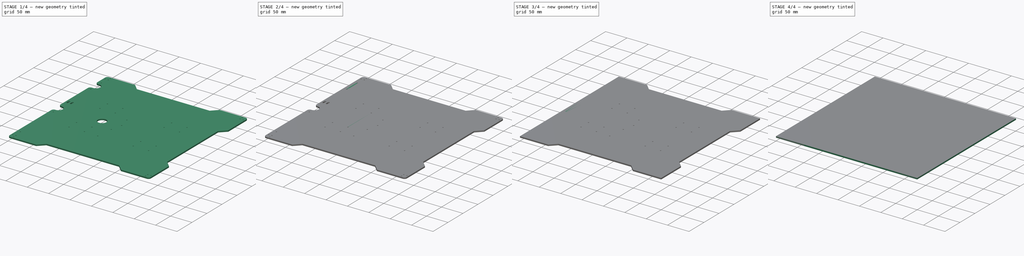
[diagram: build sequence overview — one tinted view per stage of 4, left to right]
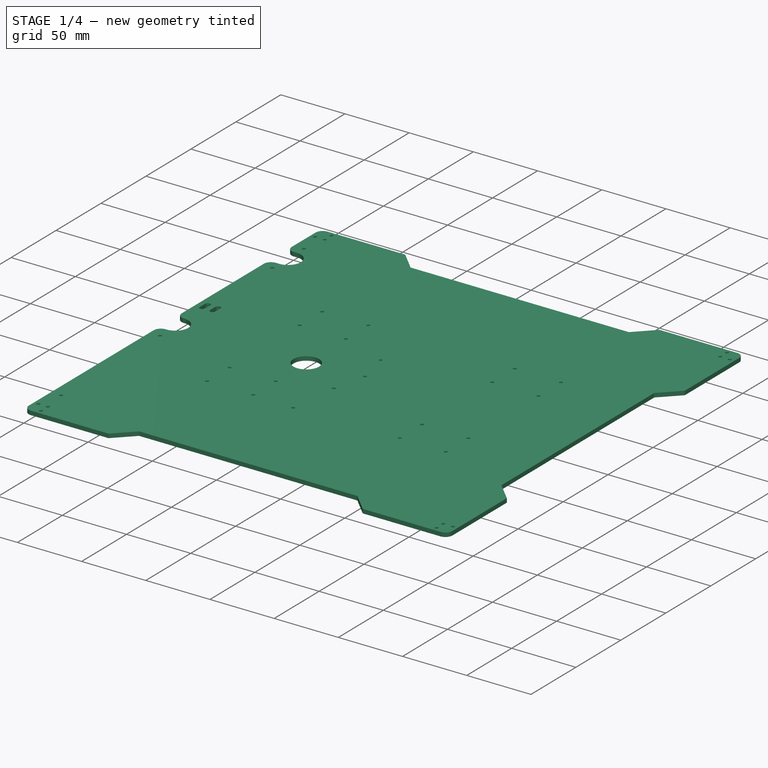
[diagram: stage 1 of 4 — iso view after this stage's code; geometry added in this stage tinted green]
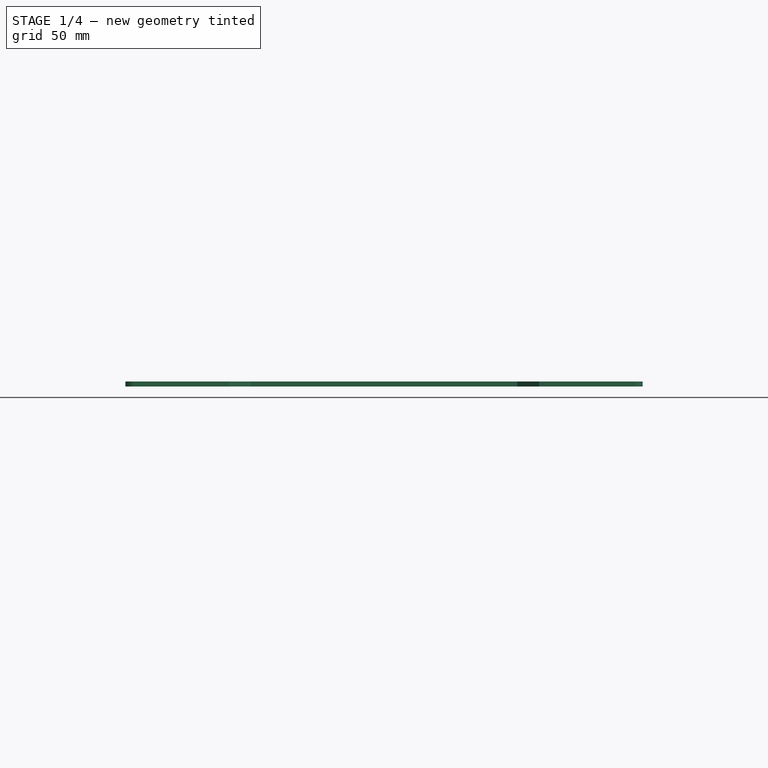
[diagram: stage 1 of 4 — front view after this stage's code; geometry added in this stage tinted green]
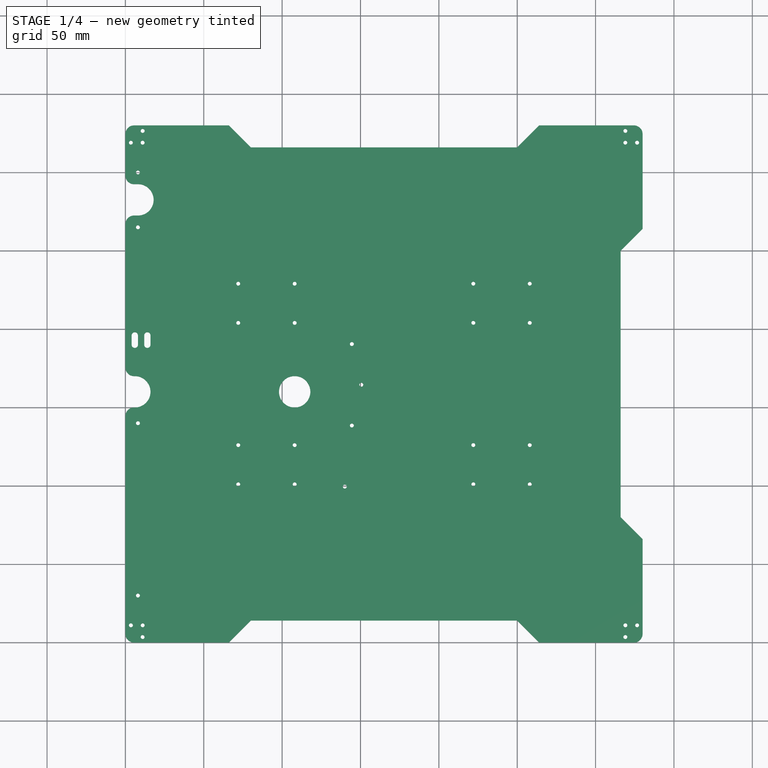
[diagram: stage 1 of 4 — top view after this stage's code; geometry added in this stage tinted green]
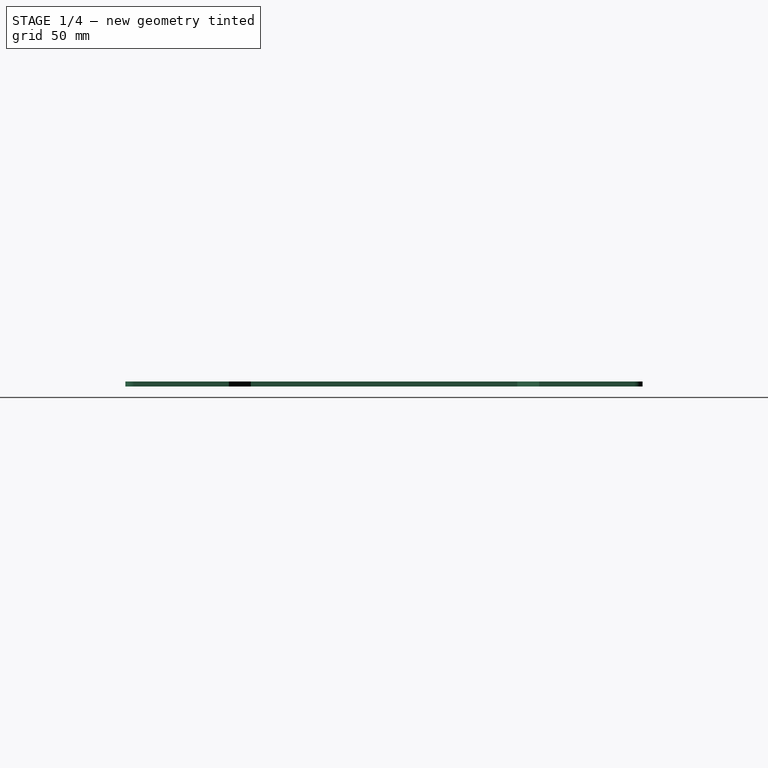
[diagram: stage 1 of 4 — right view after this stage's code; geometry added in this stage tinted green]
FCSTD DOCUMENT  (FreeCAD 0.16R6698 (Git))
Label: 300mm_bed_plate_6061_revD
License: All rights reserved
LicenseURL: http://en.wikipedia.org/wiki/All_rights_reserved
objects: Drawing::FeatureView×128, Sketcher::SketchObject×10, PartDesign::Pocket×8, Drawing::FeatureViewPart×6, PartDesign::Fillet×3, Drawing::FeaturePage×3, PartDesign::Pad×2
note: 33 computed .brp shape members not serialized (recipe doc carries the construction recipe); baked Part::Feature solids carry a one-line shape summary decoded from their .brp

FEATURE [Sketcher::SketchObject] Sketch008
  ExternalGeometry = -> [Fillet001]
  Placement = pos=(0,0,3.175) rot=(0,0,1;0rad)
  sketch-geometry (7):
    g0: ArcOfCircle CenterX=0 CenterY=282.5 CenterZ=0 NormalX=0 NormalY=0 NormalZ=1 Radius=10 StartAngle=1.5708 EndAngle=4.71239
    g1: ArcOfCircle CenterX=8 CenterY=282.5 CenterZ=0 NormalX=0 NormalY=0 NormalZ=1 Radius=10 StartAngle=4.71239 EndAngle=7.85398
    g2: LineSegment StartX=3e-12 StartY=272.5 StartZ=0 EndX=8 EndY=272.5 EndZ=0
    g3: LineSegment StartX=-1e-12 StartY=292.5 StartZ=0 EndX=8 EndY=292.5 EndZ=0
    g4: LineSegment [constr] StartX=8 StartY=300 StartZ=0 EndX=8 EndY=282.5 EndZ=0
    g5: LineSegment [constr] StartX=8 StartY=282.5 StartZ=0 EndX=8 EndY=265 EndZ=0
    g6: Circle CenterX=108 CenterY=160 CenterZ=0 NormalX=0 NormalY=0 NormalZ=1 Radius=10
  constraints (17):
    c: Tangent(g0,g3) = 1.5708
    c: Tangent(g0,g2) = -1.5708
    c: Tangent(g2,g1) = -1.5708
    c: Tangent(g3,g1) = 1.5708
    c: Horizontal(g2)
    c: Equal(g0,g1)
    c: PointOnObject(g0,g-3)
    c: Radius(g1) = 10
    c: Coincident(g4,g-4)
    c: Coincident(g4,g1)
    c: Coincident(g4,g5)
    c: Coincident(g5,g-5)
    c: Equal(g5,g4)
    c: DistanceX(g1,g0) = -8
    c: Radius(g6) = 10
    c: DistanceX(g6) = 108
    c: DistanceY(g6) = 160
FEATURE [PartDesign::Pocket] Pocket006
  Length = 5
  Type = 0
FEATURE [PartDesign::Fillet] Fillet002
  Base = -> Pocket006 [Edge76,Edge84]
  Radius = 5.5
FEATURE [Drawing::FeatureViewPart] Ortho  label="Ortho_0_0"
  Direction = (0,0,1)
  HiddenWidth = 0.15
  LineWidth = 0.35
  Rotation = 0
  Scale = 0.25
  ShowHiddenLines = false
  ShowSmoothLines = false
  Source = -> Fillet002
  Tolerance = 0.05
  ViewResult = <blob: 3542 chars omitted>
  Visible = true
  X = 68.75
  Y = 116.25
FEATURE [Drawing::FeatureViewPart] Ortho001  label="Ortho_1_0"
  Direction = (1,0,0)
  HiddenWidth = 0.15
  LineWidth = 0.35
  Rotation = 180
  Scale = 0.25
  ShowHiddenLines = false
  ShowSmoothLines = false
  Source = -> Fillet002
  Tolerance = 0.05
  ViewResult = <blob: 2100 chars omitted>
  Visible = true
  X = 200
  Y = 116.25
FEATURE [Drawing::FeatureViewPart] View
  Direction = (1,1,1)
  HiddenWidth = 0.15
  LineWidth = 0.35
  Rotation = 0
  Scale = 0.15
  ShowHiddenLines = false
  ShowSmoothLines = false
  Source = -> Fillet002
  Tolerance = 0.05
  ViewResult = <blob: 13089 chars omitted>
  Visible = true
  X = 15
  Y = 185
FEATURE [Drawing::FeatureView] centerLines001
  Rotation = 0
  ViewResult = <g transform="scale(0.250000,0.250000)" stroke="rgb(0,0,255)"  stroke-width="1.200000" > <path d="M 283.000000,182.500000 L 283.000000,186.978897 "/>\n<path d="M 283.000000,182.500000 L 287.334803,182.500000 "/>\n<path d="M 283.000000,182.500000 L 283.000000,178.527874 "/>\n<path d="M 283.000000,182.500000 L 278.883779,182.500000 "/> </g> 
  Visible = true
  X = 0
  Y = 0
FEATURE [Drawing::FeatureView] centerLines002
  Rotation = 0
  ViewResult = <g transform="scale(0.250000,0.250000)" stroke="rgb(0,0,255)"  stroke-width="1.200000" > <path d="M 281.000000,305.000000 L 281.000000,310.046929 "/>\n<path d="M 281.000000,305.000000 L 285.750236,305.000000 "/>\n<path d="M 281.000000,305.000000 L 281.000000,300.539527 "/>\n<path d="M 281.000000,305.000000 L 276.242834,305.000000 "/> </g> 
  Visible = true
  X = 0
  Y = 0
FEATURE [Drawing::FeatureView] centerLines003
  Rotation = 0
  ViewResult = <g transform="scale(0.250000,0.250000)" stroke="rgb(0,0,255)"  stroke-width="1.200000" > <path d="M 383.000000,305.000000 L 383.000000,308.990551 "/>\n<path d="M 383.000000,305.000000 L 387.690708,305.000000 "/>\n<path d="M 383.000000,305.000000 L 383.000000,300.539527 "/>\n<path d="M 383.000000,305.000000 L 376.070550,305.000000 "/> </g> 
  Visible = true
  X = 0
  Y = 0
FEATURE [Drawing::FeatureView] centerLines004
  Rotation = 0
  ViewResult = <g transform="scale(0.250000,0.250000)" stroke="rgb(0,0,255)"  stroke-width="1.200000" > <path d="M 281.000000,269.000000 L 281.000000,271.844642 "/>\n<path d="M 281.000000,269.000000 L 284.251469,269.000000 "/>\n<path d="M 281.000000,269.000000 L 281.000000,265.948328 "/>\n<path d="M 281.000000,269.000000 L 277.003917,269.000000 "/> </g> 
  Visible = true
  X = 0
  Y = 0
FEATURE [Drawing::FeatureView] centerLines005
  Rotation = 0
  ViewResult = <g transform="scale(0.250000,0.250000)" stroke="rgb(0,0,255)"  stroke-width="1.200000" > <path d="M 281.000000,275.000000 L 281.000000,277.863796 "/>\n<path d="M 281.000000,275.000000 L 283.637270,275.000000 "/>\n<path d="M 281.000000,275.000000 L 281.000000,272.581681 "/>\n<path d="M 281.000000,275.000000 L 278.355155,275.000000 "/> </g> 
  Visible = true
  X = 0
  Y = 0
FEATURE [Drawing::FeatureView] centerLines006
  Rotation = 0
  ViewResult = <g transform="scale(0.250000,0.250000)" stroke="rgb(0,0,255)"  stroke-width="1.200000" > <path d="M 289.000000,275.000000 L 289.000000,277.863796 "/>\n<path d="M 289.000000,275.000000 L 292.113221,275.000000 "/>\n<path d="M 289.000000,275.000000 L 289.000000,272.950201 "/>\n<path d="M 289.000000,275.000000 L 285.725548,275.000000 "/> </g> 
  Visible = true
  X = 0
  Y = 0
FEATURE [Drawing::FeatureView] centerLines007
  Rotation = 0
  ViewResult = <g transform="scale(0.250000,0.250000)" stroke="rgb(0,0,255)"  stroke-width="1.200000" > <path d="M 289.000000,269.000000 L 289.000000,265.456969 "/>\n<path d="M 289.000000,269.000000 L 292.727421,269.000000 "/>\n<path d="M 289.000000,269.000000 L 289.000000,271.230443 "/>\n<path d="M 289.000000,269.000000 L 285.848388,269.000000 "/> </g> 
  Visible = true
  X = 0
  Y = 0
FEATURE [Drawing::FeatureView] dim001
  Rotation = 0
  ViewResult = <g> \n  <line x1="68.750000" y1="33.125000" x2="68.750000" y2="25.720163" style="stroke:rgb(0,0,255);stroke-width:0.20" />\n<line x1="70.750000" y1="42.631968" x2="70.750000" y2="25.720163" style="stroke:rgb(0,0,255);stroke-width:0.20" />\n<line x1="68.750000" y1="26.720163" x2="70.750000" y2="26.720163" style="stroke:rgb(0,0,255);stroke-width:0.20" /> \n  <polygon points="70.750000,26.720163 73.750000,27.470163 73.750000,26.720163 73.750000,25.970163" style="fill:rgb(0,0,255);stroke:rgb(0,0,255);stroke-width:0" /><polygon points="68.750000,26.720163 65.750000,25.970163 65.750000,26.720163 65.750000,27.470163" style="fill:rgb(0,0,255);stroke:rgb(0,0,255);stroke-width:0" /> \n  <text x="60.271694" y="27.848307" font-family="Verdana" font-size="3" fill="rgb(0,0,0)" text-anchor="middle"  >5X 8.0</text> </g>
  Visible = true
  X = 0
  Y = 0
FEATURE [Drawing::FeatureView] dim002
  Rotation = 0
  ViewResult = <g> \n  <line x1="68.750000" y1="33.125000" x2="68.750000" y2="28.934619" style="stroke:rgb(0,0,255);stroke-width:0.20" />\n<line x1="70.250000" y1="64.487082" x2="70.250000" y2="28.934619" style="stroke:rgb(0,0,255);stroke-width:0.20" />\n<line x1="68.750000" y1="29.934619" x2="70.250000" y2="29.934619" style="stroke:rgb(0,0,255);stroke-width:0.20" /> \n  <polygon points="70.250000,29.934619 73.250000,30.684619 73.250000,29.934619 73.250000,29.184619" style="fill:rgb(0,0,255);stroke:rgb(0,0,255);stroke-width:0" /><polygon points="68.750000,29.934619 65.750000,29.184619 65.750000,29.934619 65.750000,30.684619" style="fill:rgb(0,0,255);stroke:rgb(0,0,255);stroke-width:0" /> \n  <text x="60.271694" y="31.030971" font-family="Verdana" font-size="3" fill="rgb(0,0,0)" text-anchor="middle"  >2X 6.0</text> </g>
  Visible = true
  X = 0
  Y = 0
FEATURE [Drawing::FeatureView] dim003
  Rotation = 0
  ViewResult = <g> \n  <line x1="68.750000" y1="39.750000" x2="68.750000" y2="22.706611" style="stroke:rgb(0,0,255);stroke-width:0.20" />\n<line x1="72.250000" y1="67.465949" x2="72.250000" y2="22.706611" style="stroke:rgb(0,0,255);stroke-width:0.20" />\n<line x1="68.750000" y1="23.706611" x2="72.250000" y2="23.706611" style="stroke:rgb(0,0,255);stroke-width:0.20" /> \n  <polygon points="72.250000,23.706611 75.250000,24.456611 75.250000,23.706611 75.250000,22.956611" style="fill:rgb(0,0,255);stroke:rgb(0,0,255);stroke-width:0" /><polygon points="68.750000,23.706611 65.750000,22.956611 65.750000,23.706611 65.750000,24.456611" style="fill:rgb(0,0,255);stroke:rgb(0,0,255);stroke-width:0" /> \n  <text x="61.664109" y="24.665644" font-family="Verdana" font-size="3" fill="rgb(0,0,0)" text-anchor="middle"  >14.0</text> </g>
  Visible = true
  X = 0
  Y = 0
FEATURE [Drawing::FeatureView] dim004
  Rotation = 0
  ViewResult = <g> \n  <line x1="68.750000" y1="39.750000" x2="68.750000" y2="19.621376" style="stroke:rgb(0,0,255);stroke-width:0.20" />\n<line x1="85.250000" y1="31.750000" x2="85.250000" y2="19.621376" style="stroke:rgb(0,0,255);stroke-width:0.20" />\n<line x1="68.750000" y1="20.621376" x2="85.250000" y2="20.621376" style="stroke:rgb(0,0,255);stroke-width:0.20" /> \n  <polygon points="85.250000,20.621376 82.250000,19.871376 82.250000,20.621376 82.250000,21.371376" style="fill:rgb(0,0,255);stroke:rgb(0,0,255);stroke-width:0" /><polygon points="68.750000,20.621376 71.750000,21.371376 71.750000,20.621376 71.750000,19.871376" style="fill:rgb(0,0,255);stroke:rgb(0,0,255);stroke-width:0" /> \n  <text x="61.465193" y="21.681897" font-family="Verdana" font-size="3" fill="rgb(0,0,0)" text-anchor="middle"  >2X 66.0</text> </g>
  Visible = true
  X = 0
  Y = 0
FEATURE [Drawing::FeatureView] dim005
  Rotation = 0
  ViewResult = <g> \n  <line x1="68.750000" y1="39.750000" x2="68.750000" y2="16.913519" style="stroke:rgb(0,0,255);stroke-width:0.20" />\n<line x1="134.750000" y1="31.750000" x2="134.750000" y2="16.913519" style="stroke:rgb(0,0,255);stroke-width:0.20" />\n<line x1="68.750000" y1="17.913519" x2="134.750000" y2="17.913519" style="stroke:rgb(0,0,255);stroke-width:0.20" /> \n  <polygon points="134.750000,17.913519 131.750000,17.163519 131.750000,17.913519 131.750000,18.663519" style="fill:rgb(0,0,255);stroke:rgb(0,0,255);stroke-width:0" /><polygon points="68.750000,17.913519 71.750000,18.663519 71.750000,17.913519 71.750000,17.163519" style="fill:rgb(0,0,255);stroke:rgb(0,0,255);stroke-width:0" /> \n  <text x="60.669527" y="18.499233" font-family="Verdana" font-size="3" fill="rgb(0,0,0)" text-anchor="middle"  >2X 264.0</text> </g>
  Visible = true
  X = 0
  Y = 0
FEATURE [Drawing::FeatureView] dim006
  Rotation = 0
  ViewResult = <g> \n  <line x1="68.750000" y1="39.750000" x2="68.750000" y2="13.580771" style="stroke:rgb(0,0,255);stroke-width:0.20" />\n<line x1="151.250000" y1="48.250000" x2="151.250000" y2="13.580771" style="stroke:rgb(0,0,255);stroke-width:0.20" />\n<line x1="68.750000" y1="14.580771" x2="151.250000" y2="14.580771" style="stroke:rgb(0,0,255);stroke-width:0.20" /> \n  <polygon points="151.250000,14.580771 148.250000,13.830771 148.250000,14.580771 148.250000,15.330771" style="fill:rgb(0,0,255);stroke:rgb(0,0,255);stroke-width:0" /><polygon points="68.750000,14.580771 71.750000,15.330771 71.750000,14.580771 71.750000,13.830771" style="fill:rgb(0,0,255);stroke:rgb(0,0,255);stroke-width:0" /> \n  <text x="63.056525" y="15.316569" font-family="Verdana" font-size="3" fill="rgb(0,0,0)" text-anchor="middle"  >330.0</text> </g>
  Visible = true
  X = 0
  Y = 0
FEATURE [Drawing::FeatureView] dim007
  Rotation = 0
  ViewResult = <g> <line x1="136.164214" y1="32.335786" x2="154.184573" y2="14.315427" style="stroke:rgb(0,0,255);stroke-width:0.20" />\n<line x1="151.875000" y1="33.750000" x2="162.234637" y2="33.750000" style="stroke:rgb(0,0,255);stroke-width:0.20" />\n<path d = "M 153.477467 15.022533 A 26.484637 26.484637 0 0 1 161.234637 33.750000" style="stroke:rgb(0,0,255);stroke-width:0.20;fill:none" />\n<polygon points="153.477467,15.022533 155.068457,17.674184 155.598787,17.143854 156.129117,16.613524" style="fill:rgb(0,0,255);stroke:rgb(0,0,255);stroke-width:0" />\n<polygon points="161.234637,33.750000 161.984637,30.750000 161.234637,30.750000 160.484637,30.750000" style="fill:rgb(0,0,255);stroke:rgb(0,0,255);stroke-width:0" />\n<text x="161.429967" y="24.162421" font-family="Verdana" font-size="3" fill="rgb(0,0,0)" text-anchor="-0.344984448067"  >45° TYP</text> </g>
  Visible = true
  X = 0
  Y = 0
FEATURE [Drawing::FeatureView] dim008
  Rotation = 0
  ViewResult = <g>  <circle cx ="95.750000" cy ="76.250000" r="0.500000" stroke="none" fill="rgb(0,0,255)" /> \n<line x1="103.523476" y1="32.285993" x2="95.314716" y2="78.711814" style="stroke:rgb(0,0,255);stroke-width:0.20" />\n<polygon points="96.185284,73.788186 97.446170,70.964595 96.707626,70.834010 95.969082,70.703424" style="fill:rgb(0,0,255);stroke:rgb(0,0,255);stroke-width:0" />\n<polygon points="95.314716,78.711814 94.053830,81.535405 94.792374,81.665990 95.530918,81.796576" style="fill:rgb(0,0,255);stroke:rgb(0,0,255);stroke-width:0" />\n<line x1="103.523476" y1="32.285993" x2="118.104247" y2="32.285993" style="stroke:rgb(0,0,255);stroke-width:0.20" />\n<text x="110.813861" y="30.285993" font-family="Verdana" font-size="3" fill="rgb(0,0,0)" text-anchor="middle"  >Ø20.0 THRU</text> </g>
  Visible = true
  X = 0
  Y = 0
FEATURE [Drawing::FeatureView] dim009
  Rotation = 0
  ViewResult = <g>  <circle cx ="70.750000" cy ="45.625000" r="0.500000" stroke="none" fill="rgb(0,0,255)" /> \n<line x1="46.450171" y1="24.787311" x2="70.750000" y2="45.625000" style="stroke:rgb(0,0,255);stroke-width:0.20" />\n<polygon points="68.852216,43.997605 67.063094,41.475395 66.574875,42.044730 66.086657,42.614065" style="fill:rgb(0,0,255);stroke:rgb(0,0,255);stroke-width:0" />\n<line x1="46.450171" y1="24.787311" x2="33.327477" y2="24.787311" style="stroke:rgb(0,0,255);stroke-width:0.20" />\n<text x="39.888824" y="22.787311" font-family="Verdana" font-size="3" fill="rgb(0,0,0)" text-anchor="middle"  >2X R10.0</text> </g>
  Visible = true
  X = 0
  Y = 0
FEATURE [Drawing::FeatureView] dim010
  Rotation = 0
  ViewResult = <g> \n  <line x1="68.125000" y1="116.250000" x2="52.214515" y2="116.250000" style="stroke:rgb(0,0,255);stroke-width:0.20" />\n<line x1="86.750000" y1="112.750000" x2="52.214515" y2="112.750000" style="stroke:rgb(0,0,255);stroke-width:0.20" />\n<line x1="53.214515" y1="116.250000" x2="53.214515" y2="112.750000" style="stroke:rgb(0,0,255);stroke-width:0.20" /> \n  <polygon points="53.214515,112.750000 53.964515,109.750000 53.214515,109.750000 52.464515,109.750000" style="fill:rgb(0,0,255);stroke:rgb(0,0,255);stroke-width:0" /><polygon points="53.214515,116.250000 52.464515,119.250000 53.214515,119.250000 53.964515,119.250000" style="fill:rgb(0,0,255);stroke:rgb(0,0,255);stroke-width:0" /> \n  <text x="54.475522" y="123.477850" font-family="Verdana" font-size="3" fill="rgb(0,0,0)" text-anchor="middle" transform="rotate(-90.000000 54.475522,123.477850)" >14.0</text> </g>
  Visible = true
  X = 0
  Y = 0
FEATURE [Drawing::FeatureView] dim011
  Rotation = 0
  ViewResult = <g> \n  <line x1="68.125000" y1="116.250000" x2="48.330612" y2="116.250000" style="stroke:rgb(0,0,255);stroke-width:0.20" />\n<line x1="69.125000" y1="108.750000" x2="48.330612" y2="108.750000" style="stroke:rgb(0,0,255);stroke-width:0.20" />\n<line x1="49.330612" y1="116.250000" x2="49.330612" y2="108.750000" style="stroke:rgb(0,0,255);stroke-width:0.20" /> \n  <polygon points="49.330612,108.750000 50.080612,105.750000 49.330612,105.750000 48.580612,105.750000" style="fill:rgb(0,0,255);stroke:rgb(0,0,255);stroke-width:0" /><polygon points="49.330612,116.250000 48.580612,119.250000 49.330612,119.250000 50.080612,119.250000" style="fill:rgb(0,0,255);stroke:rgb(0,0,255);stroke-width:0" /> \n  <text x="50.480650" y="123.477850" font-family="Verdana" font-size="3" fill="rgb(0,0,0)" text-anchor="middle" transform="rotate(-90.000000 50.480650,123.477850)" >30.0</text> </g>
  Visible = true
  X = 0
  Y = 0
FEATURE [Drawing::FeatureView] dim012
  Rotation = 0
  ViewResult = <g> \n  <line x1="68.125000" y1="116.250000" x2="45.455515" y2="116.250000" style="stroke:rgb(0,0,255);stroke-width:0.20" />\n<line x1="149.250000" y1="99.750000" x2="45.455515" y2="99.750000" style="stroke:rgb(0,0,255);stroke-width:0.20" />\n<line x1="46.455515" y1="116.250000" x2="46.455515" y2="99.750000" style="stroke:rgb(0,0,255);stroke-width:0.20" /> \n  <polygon points="46.455515,99.750000 45.705515,102.750000 46.455515,102.750000 47.205515,102.750000" style="fill:rgb(0,0,255);stroke:rgb(0,0,255);stroke-width:0" /><polygon points="46.455515,116.250000 47.205515,113.250000 46.455515,113.250000 45.705515,113.250000" style="fill:rgb(0,0,255);stroke:rgb(0,0,255);stroke-width:0" /> \n  <text x="47.212119" y="120.754074" font-family="Verdana" font-size="3" fill="rgb(0,0,0)" text-anchor="middle" transform="rotate(-90.000000 47.212119,120.754074)" >66.0</text> </g>
  Visible = true
  X = 0
  Y = 0
FEATURE [Drawing::FeatureView] dim013
  Rotation = 0
  ViewResult = <g> \n  <line x1="68.125000" y1="116.250000" x2="41.932807" y2="116.250000" style="stroke:rgb(0,0,255);stroke-width:0.20" />\n<line x1="69.125000" y1="81.250000" x2="41.932807" y2="81.250000" style="stroke:rgb(0,0,255);stroke-width:0.20" />\n<line x1="42.932807" y1="116.250000" x2="42.932807" y2="81.250000" style="stroke:rgb(0,0,255);stroke-width:0.20" /> \n  <polygon points="42.932807,81.250000 42.182807,84.250000 42.932807,84.250000 43.682807,84.250000" style="fill:rgb(0,0,255);stroke:rgb(0,0,255);stroke-width:0" /><polygon points="42.932807,116.250000 43.682807,113.250000 42.932807,113.250000 42.182807,113.250000" style="fill:rgb(0,0,255);stroke:rgb(0,0,255);stroke-width:0" /> \n  <text x="44.306758" y="121.843584" font-family="Verdana" font-size="3" fill="rgb(0,0,0)" text-anchor="middle" transform="rotate(-90.000000 44.306758,121.843584)" >140.0</text> </g>
  Visible = true
  X = 0
  Y = 0
FEATURE [Drawing::FeatureView] dim014
  Rotation = 0
  ViewResult = <g> \n  <line x1="68.125000" y1="116.250000" x2="38.595634" y2="116.250000" style="stroke:rgb(0,0,255);stroke-width:0.20" />\n<line x1="67.060709" y1="76.250000" x2="38.595634" y2="76.250000" style="stroke:rgb(0,0,255);stroke-width:0.20" />\n<line x1="39.595634" y1="116.250000" x2="39.595634" y2="76.250000" style="stroke:rgb(0,0,255);stroke-width:0.20" /> \n  <polygon points="39.595634,76.250000 38.845634,79.250000 39.595634,79.250000 40.345634,79.250000" style="fill:rgb(0,0,255);stroke:rgb(0,0,255);stroke-width:0" /><polygon points="39.595634,116.250000 40.345634,113.250000 39.595634,113.250000 38.845634,113.250000" style="fill:rgb(0,0,255);stroke:rgb(0,0,255);stroke-width:0" /> \n  <text x="40.856642" y="124.022605" font-family="Verdana" font-size="3" fill="rgb(0,0,0)" text-anchor="middle" transform="rotate(-90.000000 40.856642,124.022605)" >2X 160.0</text> </g>
  Visible = true
  X = 0
  Y = 0
FEATURE [Drawing::FeatureView] dim015
  Rotation = 0
  ViewResult = <g> \n  <line x1="68.125000" y1="116.250000" x2="34.953845" y2="116.250000" style="stroke:rgb(0,0,255);stroke-width:0.20" />\n<line x1="68.909318" y1="68.750000" x2="34.953845" y2="68.750000" style="stroke:rgb(0,0,255);stroke-width:0.20" />\n<line x1="35.953845" y1="116.250000" x2="35.953845" y2="68.750000" style="stroke:rgb(0,0,255);stroke-width:0.20" /> \n  <polygon points="35.953845,68.750000 35.203845,71.750000 35.953845,71.750000 36.703845,71.750000" style="fill:rgb(0,0,255);stroke:rgb(0,0,255);stroke-width:0" /><polygon points="35.953845,116.250000 36.703845,113.250000 35.953845,113.250000 35.203845,113.250000" style="fill:rgb(0,0,255);stroke:rgb(0,0,255);stroke-width:0" /> \n  <text x="37.043355" y="123.659435" font-family="Verdana" font-size="3" fill="rgb(0,0,0)" text-anchor="middle" transform="rotate(-90.000000 37.043355,123.659435)" >2X 190.0</text> </g>
  Visible = true
  X = 0
  Y = 0
FEATURE [Drawing::FeatureView] dim016
  Rotation = 0
  ViewResult = <g> \n  <line x1="68.125000" y1="116.250000" x2="31.600201" y2="116.250000" style="stroke:rgb(0,0,255);stroke-width:0.20" />\n<line x1="69.462097" y1="67.250000" x2="31.600201" y2="67.250000" style="stroke:rgb(0,0,255);stroke-width:0.20" />\n<line x1="32.600201" y1="116.250000" x2="32.600201" y2="67.250000" style="stroke:rgb(0,0,255);stroke-width:0.20" /> \n  <polygon points="32.600201,67.250000 31.850201,70.250000 32.600201,70.250000 33.350201,70.250000" style="fill:rgb(0,0,255);stroke:rgb(0,0,255);stroke-width:0" /><polygon points="32.600201,116.250000 33.350201,113.250000 32.600201,113.250000 31.850201,113.250000" style="fill:rgb(0,0,255);stroke:rgb(0,0,255);stroke-width:0" /> \n  <text x="33.774824" y="121.117244" font-family="Verdana" font-size="3" fill="rgb(0,0,0)" text-anchor="middle" transform="rotate(-90.000000 33.774824,121.117244)" >196.0</text> </g>
  Visible = true
  X = 0
  Y = 0
FEATURE [Drawing::FeatureView] dim017
  Rotation = 0
  ViewResult = <g> \n  <line x1="68.125000" y1="116.250000" x2="28.284926" y2="116.250000" style="stroke:rgb(0,0,255);stroke-width:0.20" />\n<line x1="149.250000" y1="50.250000" x2="28.284926" y2="50.250000" style="stroke:rgb(0,0,255);stroke-width:0.20" />\n<line x1="29.284926" y1="116.250000" x2="29.284926" y2="50.250000" style="stroke:rgb(0,0,255);stroke-width:0.20" /> \n  <polygon points="29.284926,50.250000 28.534926,53.250000 29.284926,53.250000 30.034926,53.250000" style="fill:rgb(0,0,255);stroke:rgb(0,0,255);stroke-width:0" /><polygon points="29.284926,116.250000 30.034926,113.250000 29.284926,113.250000 28.534926,113.250000" style="fill:rgb(0,0,255);stroke:rgb(0,0,255);stroke-width:0" /> \n  <text x="30.506292" y="121.117244" font-family="Verdana" font-size="3" fill="rgb(0,0,0)" text-anchor="middle" transform="rotate(-90.000000 30.506292,121.117244)" >264.0</text> </g>
  Visible = true
  X = 0
  Y = 0
FEATURE [Drawing::FeatureView] dim018
  Rotation = 0
  ViewResult = <g> \n  <line x1="68.125000" y1="116.250000" x2="24.859143" y2="116.250000" style="stroke:rgb(0,0,255);stroke-width:0.20" />\n<line x1="69.125000" y1="50.000000" x2="24.859143" y2="50.000000" style="stroke:rgb(0,0,255);stroke-width:0.20" />\n<line x1="25.859143" y1="116.250000" x2="25.859143" y2="50.000000" style="stroke:rgb(0,0,255);stroke-width:0.20" /> \n  <polygon points="25.859143,50.000000 25.109143,53.000000 25.859143,53.000000 26.609143,53.000000" style="fill:rgb(0,0,255);stroke:rgb(0,0,255);stroke-width:0" /><polygon points="25.859143,116.250000 26.609143,113.250000 25.859143,113.250000 25.109143,113.250000" style="fill:rgb(0,0,255);stroke:rgb(0,0,255);stroke-width:0" /> \n  <text x="26.874591" y="121.117244" font-family="Verdana" font-size="3" fill="rgb(0,0,0)" text-anchor="middle" transform="rotate(-90.000000 26.874591,121.117244)" >265.0</text> </g>
  Visible = true
  X = 0
  Y = 0
FEATURE [Drawing::FeatureView] dim019
  Rotation = 0
  ViewResult = <g> \n  <line x1="68.125000" y1="116.250000" x2="21.676479" y2="116.250000" style="stroke:rgb(0,0,255);stroke-width:0.20" />\n<line x1="67.720945" y1="45.625000" x2="21.676479" y2="45.625000" style="stroke:rgb(0,0,255);stroke-width:0.20" />\n<line x1="22.676479" y1="116.250000" x2="22.676479" y2="45.625000" style="stroke:rgb(0,0,255);stroke-width:0.20" /> \n  <polygon points="22.676479,45.625000 21.926479,48.625000 22.676479,48.625000 23.426479,48.625000" style="fill:rgb(0,0,255);stroke:rgb(0,0,255);stroke-width:0" /><polygon points="22.676479,116.250000 23.426479,113.250000 22.676479,113.250000 21.926479,113.250000" style="fill:rgb(0,0,255);stroke:rgb(0,0,255);stroke-width:0" /> \n  <text x="23.787645" y="121.480414" font-family="Verdana" font-size="3" fill="rgb(0,0,0)" text-anchor="middle" transform="rotate(-90.000000 23.787645,121.480414)" >282.5</text> </g>
  Visible = true
  X = 0
  Y = 0
FEATURE [Drawing::FeatureView] dim020
  Rotation = 0
  ViewResult = <g> \n  <line x1="68.125000" y1="116.250000" x2="18.493815" y2="116.250000" style="stroke:rgb(0,0,255);stroke-width:0.20" />\n<line x1="86.750000" y1="37.250000" x2="18.493815" y2="37.250000" style="stroke:rgb(0,0,255);stroke-width:0.20" />\n<line x1="19.493815" y1="116.250000" x2="19.493815" y2="37.250000" style="stroke:rgb(0,0,255);stroke-width:0.20" /> \n  <polygon points="19.493815,37.250000 18.743815,40.250000 19.493815,40.250000 20.243815,40.250000" style="fill:rgb(0,0,255);stroke:rgb(0,0,255);stroke-width:0" /><polygon points="19.493815,116.250000 20.243815,113.250000 19.493815,113.250000 18.743815,113.250000" style="fill:rgb(0,0,255);stroke:rgb(0,0,255);stroke-width:0" /> \n  <text x="20.700698" y="121.298829" font-family="Verdana" font-size="3" fill="rgb(0,0,0)" text-anchor="middle" transform="rotate(-90.000000 20.700698,121.298829)" >316.0</text> </g>
  Visible = true
  X = 0
  Y = 0
FEATURE [Drawing::FeatureView] dim021
  Rotation = 0
  ViewResult = <g> \n  <line x1="68.125000" y1="116.250000" x2="15.311151" y2="116.250000" style="stroke:rgb(0,0,255);stroke-width:0.20" />\n<line x1="68.125000" y1="33.750000" x2="15.311151" y2="33.750000" style="stroke:rgb(0,0,255);stroke-width:0.20" />\n<line x1="16.311151" y1="116.250000" x2="16.311151" y2="33.750000" style="stroke:rgb(0,0,255);stroke-width:0.20" /> \n  <polygon points="16.311151,33.750000 15.561151,36.750000 16.311151,36.750000 17.061151,36.750000" style="fill:rgb(0,0,255);stroke:rgb(0,0,255);stroke-width:0" /><polygon points="16.311151,116.250000 17.061151,113.250000 16.311151,113.250000 15.561151,113.250000" style="fill:rgb(0,0,255);stroke:rgb(0,0,255);stroke-width:0" /> \n  <text x="17.250582" y="123.841020" font-family="Verdana" font-size="3" fill="rgb(0,0,0)" text-anchor="middle" transform="rotate(-90.000000 17.250582,123.841020)" >2X 330.0</text> </g>
  Visible = true
  X = 0
  Y = 0
FEATURE [Drawing::FeatureView] dim033
  Rotation = 0
  ViewResult = <g> \n  <line x1="151.875000" y1="116.250000" x2="157.048968" y2="116.250000" style="stroke:rgb(0,0,255);stroke-width:0.20" />\n<line x1="150.125000" y1="115.375000" x2="157.048968" y2="115.375000" style="stroke:rgb(0,0,255);stroke-width:0.20" />\n<line x1="156.048968" y1="116.250000" x2="156.048968" y2="115.375000" style="stroke:rgb(0,0,255);stroke-width:0.20" /> \n  <polygon points="156.048968,115.375000 156.798968,112.375000 156.048968,112.375000 155.298968,112.375000" style="fill:rgb(0,0,255);stroke:rgb(0,0,255);stroke-width:0" /><polygon points="156.048968,116.250000 155.298968,119.250000 156.048968,119.250000 156.798968,119.250000" style="fill:rgb(0,0,255);stroke:rgb(0,0,255);stroke-width:0" /> \n  <text x="157.025605" y="125.494919" font-family="Verdana" font-size="3" fill="rgb(0,0,0)" text-anchor="middle" transform="rotate(-90.000000 157.025605,125.494919)" >2X 3.5</text> </g>
  Visible = true
  X = 0
  Y = 0
FEATURE [Drawing::FeatureView] dim034
  Rotation = 0
  ViewResult = <g> \n  <line x1="151.875000" y1="116.250000" x2="161.220528" y2="116.250000" style="stroke:rgb(0,0,255);stroke-width:0.20" />\n<line x1="150.125000" y1="113.500000" x2="161.220528" y2="113.500000" style="stroke:rgb(0,0,255);stroke-width:0.20" />\n<line x1="160.220528" y1="116.250000" x2="160.220528" y2="113.500000" style="stroke:rgb(0,0,255);stroke-width:0.20" /> \n  <polygon points="160.220528,113.500000 160.970528,110.500000 160.220528,110.500000 159.470528,110.500000" style="fill:rgb(0,0,255);stroke:rgb(0,0,255);stroke-width:0" /><polygon points="160.220528,116.250000 159.470528,119.250000 160.220528,119.250000 160.970528,119.250000" style="fill:rgb(0,0,255);stroke:rgb(0,0,255);stroke-width:0" /> \n  <text x="160.932061" y="126.122743" font-family="Verdana" font-size="3" fill="rgb(0,0,0)" text-anchor="middle" transform="rotate(-90.000000 160.932061,126.122743)" >4X 11.0</text> </g>
  Visible = true
  X = 0
  Y = 0
FEATURE [Drawing::FeatureView] dim035
  Rotation = 0
  ViewResult = <g> \n  <line x1="151.875000" y1="116.250000" x2="163.832273" y2="116.250000" style="stroke:rgb(0,0,255);stroke-width:0.20" />\n<line x1="105.375000" y1="91.375000" x2="163.832273" y2="91.375000" style="stroke:rgb(0,0,255);stroke-width:0.20" />\n<line x1="162.832273" y1="116.250000" x2="162.832273" y2="91.375000" style="stroke:rgb(0,0,255);stroke-width:0.20" /> \n  <polygon points="162.832273,91.375000 162.082273,94.375000 162.832273,94.375000 163.582273,94.375000" style="fill:rgb(0,0,255);stroke:rgb(0,0,255);stroke-width:0" /><polygon points="162.832273,116.250000 163.582273,113.250000 162.832273,113.250000 162.082273,113.250000" style="fill:rgb(0,0,255);stroke:rgb(0,0,255);stroke-width:0" /> \n  <text x="163.931662" y="121.379188" font-family="Verdana" font-size="3" fill="rgb(0,0,0)" text-anchor="middle" transform="rotate(-90.000000 163.931662,121.379188)" >99.5</text> </g>
  Visible = true
  X = 0
  Y = 0
FEATURE [Drawing::FeatureView] dim036
  Rotation = 0
  ViewResult = <g> \n  <line x1="151.875000" y1="116.250000" x2="166.644922" y2="116.250000" style="stroke:rgb(0,0,255);stroke-width:0.20" />\n<line x1="125.875000" y1="91.000000" x2="166.644922" y2="91.000000" style="stroke:rgb(0,0,255);stroke-width:0.20" />\n<line x1="165.644922" y1="116.250000" x2="165.644922" y2="91.000000" style="stroke:rgb(0,0,255);stroke-width:0.20" /> \n  <polygon points="165.644922,91.000000 164.894922,94.000000 165.644922,94.000000 166.394922,94.000000" style="fill:rgb(0,0,255);stroke:rgb(0,0,255);stroke-width:0" /><polygon points="165.644922,116.250000 166.394922,113.250000 165.644922,113.250000 164.894922,113.250000" style="fill:rgb(0,0,255);stroke:rgb(0,0,255);stroke-width:0" /> \n  <text x="166.582472" y="124.657821" font-family="Verdana" font-size="3" fill="rgb(0,0,0)" text-anchor="middle" transform="rotate(-90.000000 166.582472,124.657821)" >4X 101.0</text> </g>
  Visible = true
  X = 0
  Y = 0
FEATURE [Drawing::FeatureView] dim037
  Rotation = 0
  ViewResult = <g> \n  <line x1="151.875000" y1="116.250000" x2="169.268536" y2="116.250000" style="stroke:rgb(0,0,255);stroke-width:0.20" />\n<line x1="125.875000" y1="84.750000" x2="169.268536" y2="84.750000" style="stroke:rgb(0,0,255);stroke-width:0.20" />\n<line x1="168.268536" y1="116.250000" x2="168.268536" y2="84.750000" style="stroke:rgb(0,0,255);stroke-width:0.20" /> \n  <polygon points="168.268536,84.750000 167.518536,87.750000 168.268536,87.750000 169.018536,87.750000" style="fill:rgb(0,0,255);stroke:rgb(0,0,255);stroke-width:0" /><polygon points="168.268536,116.250000 169.018536,113.250000 168.268536,113.250000 167.518536,113.250000" style="fill:rgb(0,0,255);stroke:rgb(0,0,255);stroke-width:0" /> \n  <text x="169.303040" y="124.518305" font-family="Verdana" font-size="3" fill="rgb(0,0,0)" text-anchor="middle" transform="rotate(-90.000000 169.303040,124.518305)" >4X 126.0</text> </g>
  Visible = true
  X = 0
  Y = 0
FEATURE [Drawing::FeatureView] dim038
  Rotation = 0
  ViewResult = <g> \n  <line x1="151.875000" y1="116.250000" x2="171.866688" y2="116.250000" style="stroke:rgb(0,0,255);stroke-width:0.20" />\n<line x1="106.500000" y1="81.625000" x2="171.866688" y2="81.625000" style="stroke:rgb(0,0,255);stroke-width:0.20" />\n<line x1="170.866688" y1="116.250000" x2="170.866688" y2="81.625000" style="stroke:rgb(0,0,255);stroke-width:0.20" /> \n  <polygon points="170.866688,81.625000 170.116688,84.625000 170.866688,84.625000 171.616688,84.625000" style="fill:rgb(0,0,255);stroke:rgb(0,0,255);stroke-width:0" /><polygon points="170.866688,116.250000 171.616688,113.250000 170.866688,113.250000 170.116688,113.250000" style="fill:rgb(0,0,255);stroke:rgb(0,0,255);stroke-width:0" /> \n  <text x="171.953850" y="121.937253" font-family="Verdana" font-size="3" fill="rgb(0,0,0)" text-anchor="middle" transform="rotate(-90.000000 171.953850,121.937253)" >138.5</text> </g>
  Visible = true
  X = 0
  Y = 0
FEATURE [Drawing::FeatureView] dim039
  Rotation = 0
  ViewResult = <g> \n  <line x1="151.875000" y1="116.250000" x2="174.388424" y2="116.250000" style="stroke:rgb(0,0,255);stroke-width:0.20" />\n<line x1="108.000000" y1="75.125000" x2="174.388424" y2="75.125000" style="stroke:rgb(0,0,255);stroke-width:0.20" />\n<line x1="173.388424" y1="116.250000" x2="173.388424" y2="75.125000" style="stroke:rgb(0,0,255);stroke-width:0.20" /> \n  <polygon points="173.388424,75.125000 172.638424,78.125000 173.388424,78.125000 174.138424,78.125000" style="fill:rgb(0,0,255);stroke:rgb(0,0,255);stroke-width:0" /><polygon points="173.388424,116.250000 174.138424,113.250000 173.388424,113.250000 172.638424,113.250000" style="fill:rgb(0,0,255);stroke:rgb(0,0,255);stroke-width:0" /> \n  <text x="174.674418" y="121.937253" font-family="Verdana" font-size="3" fill="rgb(0,0,0)" text-anchor="middle" transform="rotate(-90.000000 174.674418,121.937253)" >164.5</text> </g>
  Visible = true
  X = 0
  Y = 0
FEATURE [Drawing::FeatureView] dim040
  Rotation = 0
  ViewResult = <g> \n  <line x1="151.875000" y1="116.250000" x2="176.986576" y2="116.250000" style="stroke:rgb(0,0,255);stroke-width:0.20" />\n<line x1="106.500000" y1="68.625000" x2="176.986576" y2="68.625000" style="stroke:rgb(0,0,255);stroke-width:0.20" />\n<line x1="175.986576" y1="116.250000" x2="175.986576" y2="68.625000" style="stroke:rgb(0,0,255);stroke-width:0.20" /> \n  <polygon points="175.986576,68.625000 175.236576,71.625000 175.986576,71.625000 176.736576,71.625000" style="fill:rgb(0,0,255);stroke:rgb(0,0,255);stroke-width:0" /><polygon points="175.986576,116.250000 176.736576,113.250000 175.986576,113.250000 175.236576,113.250000" style="fill:rgb(0,0,255);stroke:rgb(0,0,255);stroke-width:0" /> \n  <text x="177.255469" y="121.727979" font-family="Verdana" font-size="3" fill="rgb(0,0,0)" text-anchor="middle" transform="rotate(-90.000000 177.255469,121.727979)" >190.5</text> </g>
  Visible = true
  X = 0
  Y = 0
FEATURE [Drawing::FeatureView] dim041
  Rotation = 0
  ViewResult = <g> \n  <line x1="151.875000" y1="116.250000" x2="179.603197" y2="116.250000" style="stroke:rgb(0,0,255);stroke-width:0.20" />\n<line x1="125.875000" y1="65.250000" x2="179.603197" y2="65.250000" style="stroke:rgb(0,0,255);stroke-width:0.20" />\n<line x1="178.603197" y1="116.250000" x2="178.603197" y2="65.250000" style="stroke:rgb(0,0,255);stroke-width:0.20" /> \n  <polygon points="178.603197,65.250000 177.853197,68.250000 178.603197,68.250000 179.353197,68.250000" style="fill:rgb(0,0,255);stroke:rgb(0,0,255);stroke-width:0" /><polygon points="178.603197,116.250000 179.353197,113.250000 178.603197,113.250000 177.853197,113.250000" style="fill:rgb(0,0,255);stroke:rgb(0,0,255);stroke-width:0" /> \n  <text x="179.836521" y="124.239272" font-family="Verdana" font-size="3" fill="rgb(0,0,0)" text-anchor="middle" transform="rotate(-90.000000 179.836521,124.239272)" >4X 204.0</text> </g>
  Visible = true
  X = 0
  Y = 0
FEATURE [Drawing::FeatureView] dim042
  Rotation = 0
  ViewResult = <g> \n  <line x1="151.875000" y1="116.250000" x2="182.315394" y2="116.250000" style="stroke:rgb(0,0,255);stroke-width:0.20" />\n<line x1="125.875000" y1="59.000000" x2="182.315394" y2="59.000000" style="stroke:rgb(0,0,255);stroke-width:0.20" />\n<line x1="181.315394" y1="116.250000" x2="181.315394" y2="59.000000" style="stroke:rgb(0,0,255);stroke-width:0.20" /> \n  <polygon points="181.315394,59.000000 180.565394,62.000000 181.315394,62.000000 182.065394,62.000000" style="fill:rgb(0,0,255);stroke:rgb(0,0,255);stroke-width:0" /><polygon points="181.315394,116.250000 182.065394,113.250000 181.315394,113.250000 180.565394,113.250000" style="fill:rgb(0,0,255);stroke:rgb(0,0,255);stroke-width:0" /> \n  <text x="182.487331" y="124.099756" font-family="Verdana" font-size="3" fill="rgb(0,0,0)" text-anchor="middle" transform="rotate(-90.000000 182.487331,124.099756)" >4X 229.0</text> </g>
  Visible = true
  X = 0
  Y = 0
FEATURE [Drawing::FeatureView] dim043
  Rotation = 0
  ViewResult = <g> \n  <line x1="151.875000" y1="116.250000" x2="184.585603" y2="116.250000" style="stroke:rgb(0,0,255);stroke-width:0.20" />\n<line x1="150.125000" y1="36.500000" x2="184.585603" y2="36.500000" style="stroke:rgb(0,0,255);stroke-width:0.20" />\n<line x1="183.585603" y1="116.250000" x2="183.585603" y2="36.500000" style="stroke:rgb(0,0,255);stroke-width:0.20" /> \n  <polygon points="183.585603,36.500000 182.835603,39.500000 183.585603,39.500000 184.335603,39.500000" style="fill:rgb(0,0,255);stroke:rgb(0,0,255);stroke-width:0" /><polygon points="183.585603,116.250000 184.335603,113.250000 183.585603,113.250000 182.835603,113.250000" style="fill:rgb(0,0,255);stroke:rgb(0,0,255);stroke-width:0" /> \n  <text x="184.859108" y="124.099756" font-family="Verdana" font-size="3" fill="rgb(0,0,0)" text-anchor="middle" transform="rotate(-90.000000 184.859108,124.099756)" >4X 319.0</text> </g>
  Visible = true
  X = 0
  Y = 0
FEATURE [Drawing::FeatureView] dim044
  Rotation = 0
  ViewResult = <g> \n  <line x1="151.875000" y1="116.250000" x2="187.116987" y2="116.250000" style="stroke:rgb(0,0,255);stroke-width:0.20" />\n<line x1="150.125000" y1="34.625000" x2="187.116987" y2="34.625000" style="stroke:rgb(0,0,255);stroke-width:0.20" />\n<line x1="186.116987" y1="116.250000" x2="186.116987" y2="34.625000" style="stroke:rgb(0,0,255);stroke-width:0.20" /> \n  <polygon points="186.116987,34.625000 185.366987,37.625000 186.116987,37.625000 186.866987,37.625000" style="fill:rgb(0,0,255);stroke:rgb(0,0,255);stroke-width:0" /><polygon points="186.116987,116.250000 186.866987,113.250000 186.116987,113.250000 185.366987,113.250000" style="fill:rgb(0,0,255);stroke:rgb(0,0,255);stroke-width:0" /> \n  <text x="187.579676" y="124.029998" font-family="Verdana" font-size="3" fill="rgb(0,0,0)" text-anchor="middle" transform="rotate(-90.000000 187.579676,124.029998)" >2X 326.5</text> </g>
  Visible = true
  X = 0
  Y = 0
FEATURE [Drawing::FeatureView] dim045
  Rotation = 0
  ViewResult = <g> \n  <line x1="199.206250" y1="32.152750" x2="199.206250" y2="24.986898" style="stroke:rgb(0,0,255);stroke-width:0.20" />\n<line x1="200.000000" y1="32.267750" x2="200.000000" y2="24.986898" style="stroke:rgb(0,0,255);stroke-width:0.20" />\n<line x1="199.206250" y1="25.986898" x2="200.000000" y2="25.986898" style="stroke:rgb(0,0,255);stroke-width:0.20" /> \n  <polygon points="200.000000,25.986898 203.000000,26.736898 203.000000,25.986898 203.000000,25.236898" style="fill:rgb(0,0,255);stroke:rgb(0,0,255);stroke-width:0" /><polygon points="199.206250,25.986898 196.206250,25.236898 196.206250,25.986898 196.206250,26.736898" style="fill:rgb(0,0,255);stroke:rgb(0,0,255);stroke-width:0" /> \n  <text x="199.603125" y="23.986898" font-family="Verdana" font-size="3" fill="rgb(0,0,0)" text-anchor="middle"  >3.175 STK</text> </g>
  Visible = true
  X = 0
  Y = 0
FEATURE [Drawing::FeatureView] dimText001
  Rotation = 0
  ViewResult = <g> <text x="193.950992" y="19.490173" font-family="inherit" font-size="3" fill="rgb(0,0,0)" text-anchor="inherit"  >[.125"]</text> </g>
  Visible = true
  X = 0
  Y = 0
FEATURE [Drawing::FeatureView] dimText002
  Rotation = 0
  ViewResult = <g> <text x="202.349196" y="30.582142" font-family="inherit" font-size="3" fill="rgb(0,0,0)" text-anchor="inherit"  >Flatness: 1.3</text> </g>
  Visible = true
  X = 0
  Y = 0
FEATURE [Drawing::FeatureView] dimText003
  Rotation = 0
  ViewResult = <g> <text x="205.000000" y="55.000000" font-family="inherit" font-size="5" fill="rgb(0,0,0)" text-anchor="inherit" transform="rotate(0.000000 205.000000,55.000000)" >NOTES:</text> </g>
  Visible = true
  X = 0
  Y = 0
FEATURE [Drawing::FeatureView] dimText004
  Rotation = 0
  ViewResult = <g> <text x="205.000000" y="60.000000" font-family="inherit" font-size="3" fill="rgb(0,0,0)" text-anchor="inherit" transform="rotate(0.000000 205.000000,60.000000)" >1. Parts must be RoHS compliant</text> </g>
  Visible = true
  X = 0
  Y = 0
FEATURE [Drawing::FeatureView] dimText005
  Rotation = 0
  ViewResult = <g> <text x="205.000000" y="65.000000" font-family="inherit" font-size="3" fill="rgb(0,0,0)" text-anchor="inherit"  >2. Material: 6061 T6 Aluminum</text> </g>
  Visible = true
  X = 0
  Y = 0
FEATURE [Drawing::FeatureView] dimText006
  Rotation = 0
  ViewResult = <g> <text x="205.000000" y="70.000000" font-family="inherit" font-size="3" fill="rgb(0,0,0)" text-anchor="inherit" transform="rotate(0.000000 205.000000,70.000000)" >3. Break all sharp edges prior to powder coat</text> </g>
  Visible = true
  X = 0
  Y = 0
FEATURE [Drawing::FeatureView] dimText007
  Rotation = 0
  ViewResult = <g> <text x="205.000000" y="75.000000" font-family="inherit" font-size="3" fill="rgb(0,0,0)" text-anchor="inherit" transform="rotate(0.000000 205.000000,75.000000)" >4. Part is to be powder coated with Cardinal</text> </g>
  Visible = true
  X = 0
  Y = 0
FEATURE [Drawing::FeatureView] dimText008
  Rotation = 0
  ViewResult = <g> <text x="210.000000" y="80.000000" font-family="inherit" font-size="3" fill="rgb(0,0,0)" text-anchor="inherit"  >color C241-BK109.5. Mask all threads prior</text> </g>
  Visible = true
  X = 0
  Y = 0
FEATURE [Drawing::FeatureView] dim022
  Rotation = 0
  ViewResult = <g> \n  <line x1="68.750000" y1="116.875000" x2="68.750000" y2="126.536581" style="stroke:rgb(0,0,255);stroke-width:0.20" />\n<line x1="69.625000" y1="115.875000" x2="69.625000" y2="126.536581" style="stroke:rgb(0,0,255);stroke-width:0.20" />\n<line x1="68.750000" y1="125.536581" x2="69.625000" y2="125.536581" style="stroke:rgb(0,0,255);stroke-width:0.20" /> \n  <polygon points="69.625000,125.536581 72.625000,126.286581 72.625000,125.536581 72.625000,124.786581" style="fill:rgb(0,0,255);stroke:rgb(0,0,255);stroke-width:0" /><polygon points="68.750000,125.536581 65.750000,124.786581 65.750000,125.536581 65.750000,126.286581" style="fill:rgb(0,0,255);stroke:rgb(0,0,255);stroke-width:0" /> \n  <text x="61.930157" y="124.388504" font-family="Verdana" font-size="3" fill="rgb(0,0,0)" text-anchor="middle"  >2X 3.5</text> </g>
  Visible = true
  X = 0
  Y = 0
FEATURE [Drawing::FeatureView] dim023
  Rotation = 0
  ViewResult = <g> \n  <line x1="68.750000" y1="116.875000" x2="68.750000" y2="131.488353" style="stroke:rgb(0,0,255);stroke-width:0.20" />\n<line x1="71.500000" y1="117.000000" x2="71.500000" y2="131.488353" style="stroke:rgb(0,0,255);stroke-width:0.20" />\n<line x1="68.750000" y1="130.488353" x2="71.500000" y2="130.488353" style="stroke:rgb(0,0,255);stroke-width:0.20" /> \n  <polygon points="71.500000,130.488353 74.500000,131.238353 74.500000,130.488353 74.500000,129.738353" style="fill:rgb(0,0,255);stroke:rgb(0,0,255);stroke-width:0" /><polygon points="68.750000,130.488353 65.750000,129.738353 65.750000,130.488353 65.750000,131.238353" style="fill:rgb(0,0,255);stroke:rgb(0,0,255);stroke-width:0" /> \n  <text x="58.628976" y="131.254960" font-family="Verdana" font-size="3" fill="rgb(0,0,0)" text-anchor="middle"  >4X 11.0</text> </g>
  Visible = true
  X = 0
  Y = 0
FEATURE [Drawing::FeatureView] dim024
  Rotation = 0
  ViewResult = <g> \n  <line x1="68.750000" y1="116.875000" x2="68.750000" y2="133.964239" style="stroke:rgb(0,0,255);stroke-width:0.20" />\n<line x1="86.750000" y1="93.375000" x2="86.750000" y2="133.964239" style="stroke:rgb(0,0,255);stroke-width:0.20" />\n<line x1="68.750000" y1="132.964239" x2="86.750000" y2="132.964239" style="stroke:rgb(0,0,255);stroke-width:0.20" /> \n  <polygon points="86.750000,132.964239 83.750000,132.214239 83.750000,132.964239 83.750000,133.714239" style="fill:rgb(0,0,255);stroke:rgb(0,0,255);stroke-width:0" /><polygon points="68.750000,132.964239 71.750000,133.714239 71.750000,132.964239 71.750000,132.214239" style="fill:rgb(0,0,255);stroke:rgb(0,0,255);stroke-width:0" /> \n  <text x="61.666063" y="134.027953" font-family="Verdana" font-size="3" fill="rgb(0,0,0)" text-anchor="middle"  >4X 72.0</text> </g>
  Visible = true
  X = 0
  Y = 0
FEATURE [Drawing::FeatureView] dim025
  Rotation = 0
  ViewResult = <g> \n  <line x1="68.750000" y1="116.875000" x2="68.750000" y2="136.348425" style="stroke:rgb(0,0,255);stroke-width:0.20" />\n<line x1="95.750000" y1="93.375000" x2="95.750000" y2="136.348425" style="stroke:rgb(0,0,255);stroke-width:0.20" />\n<line x1="68.750000" y1="135.348425" x2="95.750000" y2="135.348425" style="stroke:rgb(0,0,255);stroke-width:0.20" /> \n  <polygon points="95.750000,135.348425 92.750000,134.598425 92.750000,135.348425 92.750000,136.098425" style="fill:rgb(0,0,255);stroke:rgb(0,0,255);stroke-width:0" /><polygon points="68.750000,135.348425 71.750000,136.098425 71.750000,135.348425 71.750000,134.598425" style="fill:rgb(0,0,255);stroke:rgb(0,0,255);stroke-width:0" /> \n  <text x="60.873779" y="136.668897" font-family="Verdana" font-size="3" fill="rgb(0,0,0)" text-anchor="middle"  >5X 108.0</text> </g>
  Visible = true
  X = 0
  Y = 0
FEATURE [Drawing::FeatureView] dim026
  Rotation = 0
  ViewResult = <g> \n  <line x1="68.750000" y1="116.875000" x2="68.750000" y2="138.640912" style="stroke:rgb(0,0,255);stroke-width:0.20" />\n<line x1="103.750000" y1="93.750000" x2="103.750000" y2="138.640912" style="stroke:rgb(0,0,255);stroke-width:0.20" />\n<line x1="68.750000" y1="137.640912" x2="103.750000" y2="137.640912" style="stroke:rgb(0,0,255);stroke-width:0.20" /> \n  <polygon points="103.750000,137.640912 100.750000,136.890912 100.750000,137.640912 100.750000,138.390912" style="fill:rgb(0,0,255);stroke:rgb(0,0,255);stroke-width:0" /><polygon points="68.750000,137.640912 71.750000,138.390912 71.750000,137.640912 71.750000,136.890912" style="fill:rgb(0,0,255);stroke:rgb(0,0,255);stroke-width:0" /> \n  <text x="63.250630" y="139.177795" font-family="Verdana" font-size="3" fill="rgb(0,0,0)" text-anchor="middle"  >140.0</text> </g>
  Visible = true
  X = 0
  Y = 0
FEATURE [Drawing::FeatureView] dim027
  Rotation = 0
  ViewResult = <g> \n  <line x1="68.750000" y1="116.875000" x2="68.750000" y2="141.483596" style="stroke:rgb(0,0,255);stroke-width:0.20" />\n<line x1="104.875000" y1="71.000000" x2="104.875000" y2="141.483596" style="stroke:rgb(0,0,255);stroke-width:0.20" />\n<line x1="68.750000" y1="140.483596" x2="104.875000" y2="140.483596" style="stroke:rgb(0,0,255);stroke-width:0.20" /> \n  <polygon points="104.875000,140.483596 101.875000,139.733596 101.875000,140.483596 101.875000,141.233596" style="fill:rgb(0,0,255);stroke:rgb(0,0,255);stroke-width:0" /><polygon points="68.750000,140.483596 71.750000,141.233596 71.750000,140.483596 71.750000,139.733596" style="fill:rgb(0,0,255);stroke:rgb(0,0,255);stroke-width:0" /> \n  <text x="60.873779" y="141.554645" font-family="Verdana" font-size="3" fill="rgb(0,0,0)" text-anchor="middle"  >2X 144.5</text> </g>
  Visible = true
  X = 0
  Y = 0
FEATURE [Drawing::FeatureView] dim028
  Rotation = 0
  ViewResult = <g> \n  <line x1="68.750000" y1="116.875000" x2="68.750000" y2="144.377584" style="stroke:rgb(0,0,255);stroke-width:0.20" />\n<line x1="106.375000" y1="77.500000" x2="106.375000" y2="144.377584" style="stroke:rgb(0,0,255);stroke-width:0.20" />\n<line x1="68.750000" y1="143.377584" x2="106.375000" y2="143.377584" style="stroke:rgb(0,0,255);stroke-width:0.20" /> \n  <polygon points="106.375000,143.377584 103.375000,142.627584 103.375000,143.377584 103.375000,144.127584" style="fill:rgb(0,0,255);stroke:rgb(0,0,255);stroke-width:0" /><polygon points="68.750000,143.377584 71.750000,144.127584 71.750000,143.377584 71.750000,142.627584" style="fill:rgb(0,0,255);stroke:rgb(0,0,255);stroke-width:0" /> \n  <text x="63.052559" y="144.371653" font-family="Verdana" font-size="3" fill="rgb(0,0,0)" text-anchor="middle"  >150.5</text> </g>
  Visible = true
  X = 0
  Y = 0
FEATURE [Drawing::FeatureView] dim029
  Rotation = 0
  ViewResult = <g> \n  <line x1="68.750000" y1="116.875000" x2="68.750000" y2="146.362008" style="stroke:rgb(0,0,255);stroke-width:0.20" />\n<line x1="124.250000" y1="93.375000" x2="124.250000" y2="146.362008" style="stroke:rgb(0,0,255);stroke-width:0.20" />\n<line x1="68.750000" y1="145.362008" x2="124.250000" y2="145.362008" style="stroke:rgb(0,0,255);stroke-width:0.20" /> \n  <polygon points="124.250000,145.362008 121.250000,144.612008 121.250000,145.362008 121.250000,146.112008" style="fill:rgb(0,0,255);stroke:rgb(0,0,255);stroke-width:0" /><polygon points="68.750000,145.362008 71.750000,146.112008 71.750000,145.362008 71.750000,144.612008" style="fill:rgb(0,0,255);stroke:rgb(0,0,255);stroke-width:0" /> \n  <text x="60.631693" y="146.682480" font-family="Verdana" font-size="3" fill="rgb(0,0,0)" text-anchor="middle"  >4X 222.0</text> </g>
  Visible = true
  X = 0
  Y = 0
FEATURE [Drawing::FeatureView] dim030
  Rotation = 0
  ViewResult = <g> \n  <line x1="68.750000" y1="116.875000" x2="68.750000" y2="148.892913" style="stroke:rgb(0,0,255);stroke-width:0.20" />\n<line x1="133.250000" y1="93.375000" x2="133.250000" y2="148.892913" style="stroke:rgb(0,0,255);stroke-width:0.20" />\n<line x1="68.750000" y1="147.892913" x2="133.250000" y2="147.892913" style="stroke:rgb(0,0,255);stroke-width:0.20" /> \n  <polygon points="133.250000,147.892913 130.250000,147.142913 130.250000,147.892913 130.250000,148.642913" style="fill:rgb(0,0,255);stroke:rgb(0,0,255);stroke-width:0" /><polygon points="68.750000,147.892913 71.750000,148.642913 71.750000,147.892913 71.750000,147.142913" style="fill:rgb(0,0,255);stroke:rgb(0,0,255);stroke-width:0" /> \n  <text x="60.741732" y="149.103346" font-family="Verdana" font-size="3" fill="rgb(0,0,0)" text-anchor="middle"  >4X 258.0</text> </g>
  Visible = true
  X = 0
  Y = 0
FEATURE [Drawing::FeatureView] dim031
  Rotation = 0
  ViewResult = <g> \n  <line x1="68.750000" y1="116.875000" x2="68.750000" y2="151.093701" style="stroke:rgb(0,0,255);stroke-width:0.20" />\n<line x1="148.500000" y1="115.875000" x2="148.500000" y2="151.093701" style="stroke:rgb(0,0,255);stroke-width:0.20" />\n<line x1="68.750000" y1="150.093701" x2="148.500000" y2="150.093701" style="stroke:rgb(0,0,255);stroke-width:0.20" /> \n  <polygon points="148.500000,150.093701 145.500000,149.343701 145.500000,150.093701 145.500000,150.843701" style="fill:rgb(0,0,255);stroke:rgb(0,0,255);stroke-width:0" /><polygon points="68.750000,150.093701 71.750000,150.843701 71.750000,150.093701 71.750000,149.343701" style="fill:rgb(0,0,255);stroke:rgb(0,0,255);stroke-width:0" /> \n  <text x="60.741732" y="151.634252" font-family="Verdana" font-size="3" fill="rgb(0,0,0)" text-anchor="middle"  >4X 319.0</text> </g>
  Visible = true
  X = 0
  Y = 0
FEATURE [Drawing::FeatureView] dim032
  Rotation = 0
  ViewResult = <g> \n  <line x1="68.750000" y1="116.875000" x2="68.750000" y2="154.174803" style="stroke:rgb(0,0,255);stroke-width:0.20" />\n<line x1="150.375000" y1="115.875000" x2="150.375000" y2="154.174803" style="stroke:rgb(0,0,255);stroke-width:0.20" />\n<line x1="68.750000" y1="153.174803" x2="150.375000" y2="153.174803" style="stroke:rgb(0,0,255);stroke-width:0.20" /> \n  <polygon points="150.375000,153.174803 147.375000,152.424803 147.375000,153.174803 147.375000,153.924803" style="fill:rgb(0,0,255);stroke:rgb(0,0,255);stroke-width:0" /><polygon points="68.750000,153.174803 71.750000,153.924803 71.750000,153.174803 71.750000,152.424803" style="fill:rgb(0,0,255);stroke:rgb(0,0,255);stroke-width:0" /> \n  <text x="60.631693" y="154.385236" font-family="Verdana" font-size="3" fill="rgb(0,0,0)" text-anchor="middle"  >2X 326.5</text> </g>
  Visible = true
  X = 0
  Y = 0
FEATURE [Drawing::FeatureView] dim046
  Rotation = 0
  ViewResult = <g>  <circle cx ="70.250000" cy ="67.250000" r="0.500000" stroke="none" fill="rgb(0,0,255)" /> \n<line x1="57.821613" y1="58.713136" x2="70.250000" y2="67.250000" style="stroke:rgb(0,0,255);stroke-width:0.20" />\n<polygon points="69.837861,66.966908 67.789662,64.650146 67.365024,65.268355 66.940386,65.886564" style="fill:rgb(0,0,255);stroke:rgb(0,0,255);stroke-width:0" />\n<line x1="57.821613" y1="58.713136" x2="46.359179" y2="58.713136" style="stroke:rgb(0,0,255);stroke-width:0.20" />\n<text x="52.090396" y="57.713136" font-family="Verdana" font-size="3" fill="rgb(0,0,0)" text-anchor="middle"  >4X R2.0 THRU</text> </g>
  Visible = true
  X = 0
  Y = 0
FEATURE [Drawing::FeatureView] dim047
  Rotation = 0
  ViewResult = <g>  <circle cx ="149.875000" cy ="114.875000" r="0.500000" stroke="none" fill="rgb(0,0,255)" /> \n<line x1="156.584175" y1="144.409424" x2="149.875000" y2="114.875000" style="stroke:rgb(0,0,255);stroke-width:0.20" />\n<polygon points="150.179591,116.215839 150.112787,119.307447 150.844154,119.141306 151.575520,118.975165" style="fill:rgb(0,0,255);stroke:rgb(0,0,255);stroke-width:0" />\n<line x1="156.584175" y1="144.409424" x2="177.196873" y2="144.409424" style="stroke:rgb(0,0,255);stroke-width:0.20" />\n<text x="166.890524" y="143.409424" font-family="Verdana" font-size="3" fill="rgb(0,0,0)" text-anchor="middle"  >8X R5.5</text> </g>
  Visible = true
  X = 0
  Y = 0
FEATURE [Drawing::FeatureView] dim048
  Rotation = 0
  ViewResult = <g>  <circle cx ="133.250000" cy ="59.000000" r="0.500000" stroke="none" fill="rgb(0,0,255)" /> \n<line x1="156.403362" y1="46.408705" x2="132.920563" y2="59.179155" style="stroke:rgb(0,0,255);stroke-width:0.20" />\n<polygon points="133.579437,58.820845 136.573240,58.046481 136.214931,57.387607 135.856621,56.728734" style="fill:rgb(0,0,255);stroke:rgb(0,0,255);stroke-width:0" />\n<polygon points="132.920563,59.179155 129.926760,59.953519 130.285069,60.612393 130.643379,61.271266" style="fill:rgb(0,0,255);stroke:rgb(0,0,255);stroke-width:0" />\n<line x1="156.403362" y1="46.408705" x2="173.982417" y2="46.408705" style="stroke:rgb(0,0,255);stroke-width:0.20" />\n<text x="167.553505" y="45.102832" font-family="Verdana" font-size="3" fill="rgb(0,0,0)" text-anchor="middle"  >36X M3 X 0.5 THRU</text> </g>
  Visible = true
  X = 0
  Y = 0
FEATURE [Drawing::FeatureView] dimText009
  Rotation = 0
  ViewResult = <g> <text x="210.000000" y="85.000000" font-family="inherit" font-size="3" fill="rgb(0,0,0)" text-anchor="inherit" transform="rotate(0.000000 210.000000,85.000000)" > to coating. Thickness of coating must not</text> </g>
  Visible = true
  X = 0
  Y = 0
FEATURE [Drawing::FeatureView] dimText010
  Rotation = 0
  ViewResult = <g> <text x="210.000000" y="90.000000" font-family="inherit" font-size="3" fill="rgb(0,0,0)" text-anchor="inherit" transform="rotate(0.000000 210.000000,90.000000)" >exceed 0.08mm</text> </g>
  Visible = true
  X = 0
  Y = 0
FEATURE [Drawing::FeatureViewPart] View001
  Direction = (0,0,1)
  HiddenWidth = 0.15
  LineWidth = 0.35
  Rotation = 0
  Scale = 0.25
  ShowHiddenLines = false
  ShowSmoothLines = false
  Source = -> Fillet002
  Tolerance = 0.05
  ViewResult = <blob: 3528 chars omitted>
  Visible = true
  X = 25
  Y = 150
FEATURE [Drawing::FeatureView] dimText011
  Rotation = 0
  ViewResult = <g> <text x="63.696248" y="177.997798" font-family="inherit" font-size="3" fill="rgb(0,0,0)" text-anchor="inherit"  >Prior to powder coat mask these 4 holes 12mm diameter this side</text> </g>
  Visible = true
  X = 0
  Y = 0
FEATURE [Drawing::FeatureViewPart] View002
  Direction = (0,0,-1)
  HiddenWidth = 0.15
  LineWidth = 0.35
  Rotation = 0
  Scale = 0.25
  ShowHiddenLines = false
  ShowSmoothLines = false
  Source = -> Fillet002
  Tolerance = 0.05
  ViewResult = <blob: 3634 chars omitted>
  Visible = true
  X = 250
  Y = 150
FEATURE [Drawing::FeatureView] dimText012
  Rotation = 0
  ViewResult = <g> <text x="161.040705" y="32.362247" font-family="inherit" font-size="3" fill="rgb(0,0,0)" text-anchor="inherit"  >Prior to powder coat mask this hole 12mm diameter this side</text> </g>
  Visible = true
  X = 0
  Y = 0
FEATURE [Drawing::FeatureView] dimLine001
  Rotation = 0
  ViewResult = <g   >\n<line x1="159.670874" y1="34.031728" x2="248.000000" y2="83.750000" style="stroke:rgb(0,0,255);stroke-width:0.20" />\n<polygon points="248.000000,83.750000 245.753575,81.624894 245.385693,82.278471 245.017810,82.932048" style="fill:rgb(0,0,255);stroke:rgb(0,0,255);stroke-width:0" />\n<line x1="159.670874" y1="34.031728" x2="250.208112" y2="34.031728" style="stroke:rgb(0,0,255);stroke-width:0.20" />\n</g> 
  Visible = true
  X = 0
  Y = 0
FEATURE [Drawing::FeatureView] dimLine002
  Rotation = 0
  ViewResult = <g   >\n<line x1="50.000000" y1="180.000000" x2="27.750000" y2="147.250000" style="stroke:rgb(0,0,255);stroke-width:0.20" />\n<polygon points="27.750000,147.250000 28.815523,150.152957 29.435894,149.731484 30.056265,149.310011" style="fill:rgb(0,0,255);stroke:rgb(0,0,255);stroke-width:0" />\n<line x1="50.000000" y1="180.000000" x2="150.000000" y2="180.000000" style="stroke:rgb(0,0,255);stroke-width:0.20" />\n</g> 
  Visible = true
  X = 0
  Y = 0
FEATURE [Drawing::FeatureView] dimLine003
  Rotation = 0
  ViewResult = <g   >\n<line x1="50.000000" y1="180.000000" x2="104.750000" y2="147.250000" style="stroke:rgb(0,0,255);stroke-width:0.20" />\n<polygon points="104.750000,147.250000 101.790442,148.146390 102.175449,148.790028 102.560456,149.433666" style="fill:rgb(0,0,255);stroke:rgb(0,0,255);stroke-width:0" />\n<line x1="50.000000" y1="180.000000" x2="150.000000" y2="180.000000" style="stroke:rgb(0,0,255);stroke-width:0.20" />\n</g> 
  Visible = true
  X = 0
  Y = 0
FEATURE [Drawing::FeatureView] dimLine004
  Rotation = 0
  ViewResult = <g   >\n<line x1="50.000000" y1="180.000000" x2="27.750000" y2="70.250000" style="stroke:rgb(0,0,255);stroke-width:0.20" />\n<polygon points="27.750000,70.250000 27.611028,73.339205 28.346074,73.190186 29.081121,73.041168" style="fill:rgb(0,0,255);stroke:rgb(0,0,255);stroke-width:0" />\n<line x1="50.000000" y1="180.000000" x2="150.000000" y2="180.000000" style="stroke:rgb(0,0,255);stroke-width:0.20" />\n</g> 
  Visible = true
  X = 0
  Y = 0
FEATURE [Drawing::FeatureView] dimLine005
  Rotation = 0
  ViewResult = <g   >\n<line x1="50.000000" y1="180.000000" x2="104.750000" y2="70.250000" style="stroke:rgb(0,0,255);stroke-width:0.20" />\n<polygon points="104.750000,70.250000 102.739680,72.599705 103.410806,72.934503 104.081932,73.269302" style="fill:rgb(0,0,255);stroke:rgb(0,0,255);stroke-width:0" />\n<line x1="50.000000" y1="180.000000" x2="140.000000" y2="180.000000" style="stroke:rgb(0,0,255);stroke-width:0.20" />\n</g> 
  Visible = true
  X = 0
  Y = 0
FEATURE [Drawing::FeatureView] dimText013
  Rotation = 0
  ViewResult = <g> <text x="60.000000" y="165.000000" font-family="inherit" font-size="4" fill="rgb(0,0,0)" text-anchor="inherit" transform="rotate(0.000000 60.000000,165.000000)" >Rev</text> </g>
  Visible = true
  X = 0
  Y = 0
FEATURE [Drawing::FeatureView] dimText014
  Rotation = 0
  ViewResult = <g> <text x="70.000000" y="165.000000" font-family="inherit" font-size="4" fill="rgb(0,0,0)" text-anchor="inherit" transform="rotate(0.000000 70.000000,165.000000)" >Date</text> </g>
  Visible = true
  X = 0
  Y = 0
FEATURE [Drawing::FeatureView] dimText015
  Rotation = 0
  ViewResult = <g> <text x="85.000000" y="165.000000" font-family="inherit" font-size="4" fill="rgb(0,0,0)" text-anchor="inherit" transform="rotate(0.000000 85.000000,165.000000)" >Description</text> </g>
  Visible = true
  X = 0
  Y = 0
FEATURE [Drawing::FeatureView] dimText016
  Rotation = 0
  ViewResult = <g> <text x="60.000000" y="205.000000" font-family="inherit" font-size="3" fill="rgb(0,0,0)" text-anchor="inherit" transform="rotate(0.000000 60.000000,205.000000)" >A</text> </g>
  Visible = true
  X = 0
  Y = 0
FEATURE [Drawing::FeatureView] dimText017
  Rotation = 0
  ViewResult = <g> <text x="70.000000" y="205.000000" font-family="inherit" font-size="3" fill="rgb(0,0,0)" text-anchor="inherit"  >5.2.16</text> </g>
  Visible = true
  X = 0
  Y = 0
FEATURE [Drawing::FeatureView] dimText018
  Rotation = 0
  ViewResult = <g> <text x="85.000000" y="205.000000" font-family="inherit" font-size="3" fill="rgb(0,0,0)" text-anchor="inherit" transform="rotate(0.000000 85.000000,205.000000)" >Additional masking notes added</text> </g>
  Visible = true
  X = 0
  Y = 0
FEATURE [Drawing::FeatureView] dimText029
  Rotation = 0
  ViewResult = <g> <text x="205.000000" y="95.000000" font-family="inherit" font-size="3" fill="rgb(0,0,0)" text-anchor="inherit"  >5. See page 2 for additional masking, laser </text> </g>
  Visible = true
  X = 0
  Y = 0
FEATURE [Drawing::FeatureView] dimText032
  Rotation = 0
  ViewResult = <g> <text x="60.000000" y="195.000000" font-family="inherit" font-size="3" fill="rgb(0,0,0)" text-anchor="inherit" transform="rotate(0.000000 60.000000,195.000000)" >B</text> </g>
  Visible = true
  X = 0
  Y = 0
FEATURE [Drawing::FeatureView] dimText033
  Rotation = 0
  ViewResult = <g> <text x="70.000000" y="195.000000" font-family="inherit" font-size="3" fill="rgb(0,0,0)" text-anchor="inherit" transform="rotate(0.000000 70.000000,195.000000)" >6.14.16</text> </g>
  Visible = true
  X = 0
  Y = 0
FEATURE [Drawing::FeatureView] dimText034
  Rotation = 0
  ViewResult = <g> <text x="85.000000" y="195.000000" font-family="inherit" font-size="3" fill="rgb(0,0,0)" text-anchor="inherit" transform="rotate(0.000000 85.000000,195.000000)" >Masking size changed and </text> </g>
  Visible = true
  X = 0
  Y = 0
FEATURE [Drawing::FeatureView] dimText035
  Rotation = 0
  ViewResult = <g> <text x="85.000000" y="200.000000" font-family="inherit" font-size="3" fill="rgb(0,0,0)" text-anchor="inherit" transform="rotate(0.000000 85.000000,200.000000)" >additional grain notes added.</text> </g>
  Visible = true
  X = 0
  Y = 0
FEATURE [Sketcher::SketchObject] Sketch009
  ExternalGeometry = -> [Fillet002]
  Placement = pos=(0,0,0) rot=(1,0,0;3.14159rad)
  Support = -> Fillet002 [Face1]
  sketch-geometry (72):
    g0: Circle CenterX=319 CenterY=-326.5 CenterZ=0 NormalX=0 NormalY=0 NormalZ=1 Radius=3
    g1: Circle CenterX=319 CenterY=-319 CenterZ=0 NormalX=0 NormalY=0 NormalZ=1 Radius=3
    g2: Circle CenterX=326.5 CenterY=-319 CenterZ=0 NormalX=0 NormalY=0 NormalZ=1 Radius=3
    g3: Circle CenterX=222 CenterY=-229 CenterZ=0 NormalX=0 NormalY=0 NormalZ=1 Radius=3
    g4: Circle CenterX=258 CenterY=-229 CenterZ=0 NormalX=0 NormalY=0 NormalZ=1 Radius=3
    g5: Circle CenterX=222 CenterY=-204 CenterZ=0 NormalX=0 NormalY=0 NormalZ=1 Radius=3
    g6: Circle CenterX=258 CenterY=-204 CenterZ=0 NormalX=0 NormalY=0 NormalZ=1 Radius=3
    g7: Circle CenterX=11 CenterY=-326.5 CenterZ=0 NormalX=0 NormalY=0 NormalZ=1 Radius=3
    g8: Circle CenterX=11 CenterY=-319 CenterZ=0 NormalX=0 NormalY=0 NormalZ=1 Radius=3
    g9: Circle CenterX=3.5 CenterY=-319 CenterZ=0 NormalX=0 NormalY=0 NormalZ=1 Radius=3
    g10: Circle CenterX=8 CenterY=-300 CenterZ=0 NormalX=0 NormalY=0 NormalZ=1 Radius=3
    g11: Circle CenterX=8 CenterY=-265 CenterZ=0 NormalX=0 NormalY=0 NormalZ=1 Radius=3
    g12: Circle CenterX=72 CenterY=-229 CenterZ=0 NormalX=0 NormalY=0 NormalZ=1 Radius=3
    g13: Circle CenterX=72 CenterY=-204 CenterZ=0 NormalX=0 NormalY=0 NormalZ=1 Radius=3
    g14: Circle CenterX=108 CenterY=-204 CenterZ=0 NormalX=0 NormalY=0 NormalZ=1 Radius=3
    g15: Circle CenterX=108 CenterY=-229 CenterZ=0 NormalX=0 NormalY=0 NormalZ=1 Radius=3
    g16: Circle CenterX=144.5 CenterY=-190.5 CenterZ=0 NormalX=0 NormalY=0 NormalZ=1 Radius=3
    g17: Circle CenterX=150.5 CenterY=-164.5 CenterZ=0 NormalX=0 NormalY=0 NormalZ=1 Radius=3
    g18: Circle CenterX=144.5 CenterY=-138.5 CenterZ=0 NormalX=0 NormalY=0 NormalZ=1 Radius=3
    g19: Circle CenterX=108 CenterY=-126 CenterZ=0 NormalX=0 NormalY=0 NormalZ=1 Radius=3
    g20: Circle CenterX=108 CenterY=-101 CenterZ=0 NormalX=0 NormalY=0 NormalZ=1 Radius=3
    g21: Circle CenterX=72 CenterY=-101 CenterZ=0 NormalX=0 NormalY=0 NormalZ=1 Radius=3
    g22: Circle CenterX=72 CenterY=-126 CenterZ=0 NormalX=0 NormalY=0 NormalZ=1 Radius=3
    g23: Circle CenterX=8 CenterY=-140 CenterZ=0 NormalX=0 NormalY=0 NormalZ=1 Radius=3
    g24: Circle CenterX=140 CenterY=-99.5 CenterZ=0 NormalX=0 NormalY=0 NormalZ=1 Radius=3
    g25: Circle CenterX=8 CenterY=-30 CenterZ=0 NormalX=0 NormalY=0 NormalZ=1 Radius=3
    g26: Circle CenterX=3.5 CenterY=-11 CenterZ=0 NormalX=0 NormalY=0 NormalZ=1 Radius=3
    g27: Circle CenterX=11 CenterY=-11 CenterZ=0 NormalX=0 NormalY=0 NormalZ=1 Radius=3
    g28: Circle CenterX=11 CenterY=-3.5 CenterZ=0 NormalX=0 NormalY=0 NormalZ=1 Radius=3
    g29: Circle CenterX=222 CenterY=-126 CenterZ=0 NormalX=0 NormalY=0 NormalZ=1 Radius=3
    g30: Circle CenterX=222 CenterY=-101 CenterZ=0 NormalX=0 NormalY=0 NormalZ=1 Radius=3
    g31: Circle CenterX=258 CenterY=-101 CenterZ=0 NormalX=0 NormalY=0 NormalZ=1 Radius=3
    g32: Circle CenterX=258 CenterY=-126 CenterZ=0 NormalX=0 NormalY=0 NormalZ=1 Radius=3
    g33: Circle CenterX=319 CenterY=-11 CenterZ=0 NormalX=0 NormalY=0 NormalZ=1 Radius=3
    g34: Circle CenterX=326.5 CenterY=-11 CenterZ=0 NormalX=0 NormalY=0 NormalZ=1 Radius=3
    g35: Circle CenterX=319 CenterY=-3.5 CenterZ=0 NormalX=0 NormalY=0 NormalZ=1 Radius=3
    g36: Circle CenterX=8 CenterY=-30 CenterZ=0 NormalX=0 NormalY=0 NormalZ=1 Radius=1.25
    g37: Circle CenterX=11 CenterY=-11 CenterZ=0 NormalX=0 NormalY=0 NormalZ=1 Radius=1.25
    g38: Circle CenterX=3.5 CenterY=-11 CenterZ=0 NormalX=0 NormalY=0 NormalZ=1 Radius=1.25
    g39: Circle CenterX=11 CenterY=-3.5 CenterZ=0 NormalX=0 NormalY=0 NormalZ=1 Radius=1.25
    g40: Circle CenterX=8 CenterY=-140 CenterZ=0 NormalX=0 NormalY=0 NormalZ=1 Radius=1.25
    g41: Circle CenterX=72 CenterY=-126 CenterZ=0 NormalX=0 NormalY=0 NormalZ=1 Radius=1.25
    g42: Circle CenterX=72 CenterY=-101 CenterZ=0 NormalX=0 NormalY=0 NormalZ=1 Radius=1.25
    g43: Circle CenterX=108 CenterY=-101 CenterZ=0 NormalX=0 NormalY=0 NormalZ=1 Radius=1.25
    g44: Circle CenterX=108 CenterY=-126 CenterZ=0 NormalX=0 NormalY=0 NormalZ=1 Radius=1.25
    g45: Circle CenterX=140 CenterY=-99.5 CenterZ=0 NormalX=0 NormalY=0 NormalZ=1 Radius=1.25
    g46: Circle CenterX=144.5 CenterY=-138.5 CenterZ=0 NormalX=0 NormalY=0 NormalZ=1 Radius=1.25
    g47: Circle CenterX=150.5 CenterY=-164.5 CenterZ=0 NormalX=0 NormalY=0 NormalZ=1 Radius=1.25
    g48: Circle CenterX=222 CenterY=-101 CenterZ=0 NormalX=0 NormalY=0 NormalZ=1 Radius=1.25
    g49: Circle CenterX=222 CenterY=-126 CenterZ=0 NormalX=0 NormalY=0 NormalZ=1 Radius=1.25
    g50: Circle CenterX=258 CenterY=-126 CenterZ=0 NormalX=0 NormalY=0 NormalZ=1 Radius=1.25
    g51: Circle CenterX=258 CenterY=-101 CenterZ=0 NormalX=0 NormalY=0 NormalZ=1 Radius=1.25
    g52: Circle CenterX=319 CenterY=-3.5 CenterZ=0 NormalX=0 NormalY=0 NormalZ=1 Radius=1.25
    g53: Circle CenterX=319 CenterY=-11 CenterZ=0 NormalX=0 NormalY=0 NormalZ=1 Radius=1.25
    g54: Circle CenterX=326.5 CenterY=-11 CenterZ=0 NormalX=0 NormalY=0 NormalZ=1 Radius=1.25
    g55: Circle CenterX=144.5 CenterY=-190.5 CenterZ=0 NormalX=0 NormalY=0 NormalZ=1 Radius=1.25
    g56: Circle CenterX=108 CenterY=-204 CenterZ=0 NormalX=0 NormalY=0 NormalZ=1 Radius=1.25
    g57: Circle CenterX=72 CenterY=-204 CenterZ=0 NormalX=0 NormalY=0 NormalZ=1 Radius=1.25
    g58: Circle CenterX=72 CenterY=-229 CenterZ=0 NormalX=0 NormalY=0 NormalZ=1 Radius=1.25
    g59: Circle CenterX=108 CenterY=-229 CenterZ=0 NormalX=0 NormalY=0 NormalZ=1 Radius=1.25
    g60: Circle CenterX=222 CenterY=-229 CenterZ=0 NormalX=0 NormalY=0 NormalZ=1 Radius=1.25
    g61: Circle CenterX=222 CenterY=-204 CenterZ=0 NormalX=0 NormalY=0 NormalZ=1 Radius=1.25
    g62: Circle CenterX=258 CenterY=-204 CenterZ=0 NormalX=0 NormalY=0 NormalZ=1 Radius=1.25
    g63: Circle CenterX=258 CenterY=-229 CenterZ=0 NormalX=0 NormalY=0 NormalZ=1 Radius=1.25
    g64: Circle CenterX=8 CenterY=-265 CenterZ=0 NormalX=0 NormalY=0 NormalZ=1 Radius=1.25
    g65: Circle CenterX=8 CenterY=-300 CenterZ=0 NormalX=0 NormalY=0 NormalZ=1 Radius=1.25
    g66: Circle CenterX=3.5 CenterY=-319 CenterZ=0 NormalX=0 NormalY=0 NormalZ=1 Radius=1.25
    g67: Circle CenterX=11 CenterY=-319 CenterZ=0 NormalX=0 NormalY=0 NormalZ=1 Radius=1.25
    g68: Circle CenterX=11 CenterY=-326.5 CenterZ=0 NormalX=0 NormalY=0 NormalZ=1 Radius=1.25
    g69: Circle CenterX=319 CenterY=-319 CenterZ=0 NormalX=0 NormalY=0 NormalZ=1 Radius=1.25
    g70: Circle CenterX=319 CenterY=-326.5 CenterZ=0 NormalX=0 NormalY=0 NormalZ=1 Radius=1.25
    g71: Circle CenterX=326.5 CenterY=-319 CenterZ=0 NormalX=0 NormalY=0 NormalZ=1 Radius=1.25
  constraints (144):
    c: Coincident(g0,g-37)
    c: Coincident(g1,g-36)
    c: Coincident(g2,g-38)
    c: Coincident(g3,g-34)
    c: Coincident(g4,g-35)
    c: Coincident(g5,g-25)
    c: Coincident(g6,g-26)
    c: Coincident(g7,g-11)
    c: Coincident(g8,g-10)
    c: Coincident(g9,g-12)
    c: Coincident(g10,g-9)
    c: Coincident(g11,g-8)
    c: Coincident(g12,g-13)
    c: Coincident(g13,g-14)
    c: Coincident(g14,g-15)
    c: Coincident(g15,g-16)
    c: Coincident(g16,g-24)
    c: Coincident(g17,g-23)
    c: Coincident(g18,g-22)
    c: Coincident(g19,g-20)
    c: Coincident(g20,g-19)
    c: Coincident(g21,g-18)
    c: Coincident(g22,g-17)
    c: Coincident(g23,g-7)
    c: Coincident(g24,g-21)
    c: Coincident(g25,g-6)
    c: Coincident(g26,g-5)
    c: Coincident(g27,g-3)
    c: Coincident(g28,g-4)
    c: Coincident(g29,g-27)
    c: Coincident(g30,g-29)
    c: Coincident(g31,g-30)
    c: Coincident(g32,g-28)
    c: Coincident(g33,g-31)
    c: Coincident(g34,g-32)
    c: Coincident(g35,g-33)
    c: Equal(g7,g8)
    c: Equal(g8,g9)
    c: Equal(g9,g10)
    c: Equal(g10,g11)
    c: Equal(g11,g23)
    c: Equal(g23,g25)
    c: Equal(g25,g21)
    c: Equal(g21,g22)
    c: Equal(g22,g13)
    c: Equal(g13,g12)
    c: Equal(g12,g15)
    c: Equal(g15,g14)
    c: Equal(g14,g16)
    c: Equal(g16,g17)
    c: Equal(g17,g18)
    c: Equal(g18,g19)
    c: Equal(g19,g20)
    c: Equal(g20,g24)
    c: Equal(g24,g29)
    c: Equal(g29,g30)
    c: Equal(g30,g31)
    c: Equal(g31,g32)
    c: Equal(g32,g6)
    c: Equal(g6,g4)
    c: Equal(g4,g3)
    c: Equal(g3,g5)
    c: Equal(g5,g1)
    c: Equal(g1,g0)
    c: Equal(g0,g2)
    c: Equal(g2,g33)
    c: Equal(g33,g34)
    c: Equal(g34,g27)
    c: Equal(g27,g28)
    c: Equal(g28,g26)
    c: Equal(g26,g35)
    c: Radius(g31) = 3
    c: Coincident(g36,g25)
    c: Coincident(g37,g27)
    c: Coincident(g38,g26)
    c: Coincident(g39,g28)
    c: Coincident(g40,g23)
    c: Coincident(g41,g22)
    c: Coincident(g42,g21)
    c: Coincident(g43,g20)
    c: Coincident(g44,g19)
    c: Coincident(g45,g24)
    c: Coincident(g46,g18)
    c: Coincident(g47,g17)
    c: Coincident(g48,g30)
    c: Coincident(g49,g29)
    c: Coincident(g50,g-28)
    c: Coincident(g51,g-30)
    c: Coincident(g52,g35)
    c: Coincident(g53,g-31)
    c: Coincident(g54,g34)
    c: Coincident(g55,g16)
    c: Coincident(g56,g-15)
    c: Coincident(g57,g-14)
    c: Coincident(g58,g12)
    c: Coincident(g59,g15)
    c: Coincident(g60,g-34)
    c: Coincident(g61,g5)
    c: Coincident(g62,g6)
    c: Coincident(g63,g-35)
    c: Coincident(g64,g11)
    c: Coincident(g65,g-9)
    c: Coincident(g66,g9)
    c: Coincident(g67,g8)
    c: Coincident(g68,g-11)
    c: Coincident(g69,g-36)
    c: Coincident(g70,g0)
    c: Coincident(g71,g2)
    c: Equal(g58,g57)
    c: Equal(g57,g56)
    c: Equal(g56,g59)
    c: Equal(g59,g64)
    c: Equal(g64,g65)
    c: Equal(g65,g67)
    c: Equal(g67,g68)
    c: Equal(g68,g66)
    c: Equal(g66,g61)
    c: Equal(g61,g60)
    c: Equal(g60,g63)
    c: Equal(g63,g62)
    c: Equal(g62,g69)
    c: Equal(g69,g70)
    c: Equal(g70,g71)
    c: Equal(g71,g55)
    c: Equal(g55,g40)
    c: Equal(g40,g41)
    c: Equal(g41,g42)
    c: Equal(g42,g43)
    c: Equal(g43,g44)
    c: Equal(g44,g45)
    c: Equal(g45,g46)
    c: Equal(g46,g47)
    c: Equal(g47,g49)
    c: Equal(g49,g48)
    c: Equal(g48,g51)
    c: Equal(g51,g50)
    c: Equal(g50,g39)
    c: Equal(g39,g37)
    c: Equal(g37,g38)
    c: Equal(g38,g36)
    c: Equal(g36,g53)
    c: Equal(g53,g54)
    c: Equal(g54,g52)
    c: Radius(g51) = 1.25
FEATURE [PartDesign::Pad] Pad001
  Length = 3.175
  Length2 = 100
  Reversed = true
  Sketch = -> Sketch009
  Type = 0
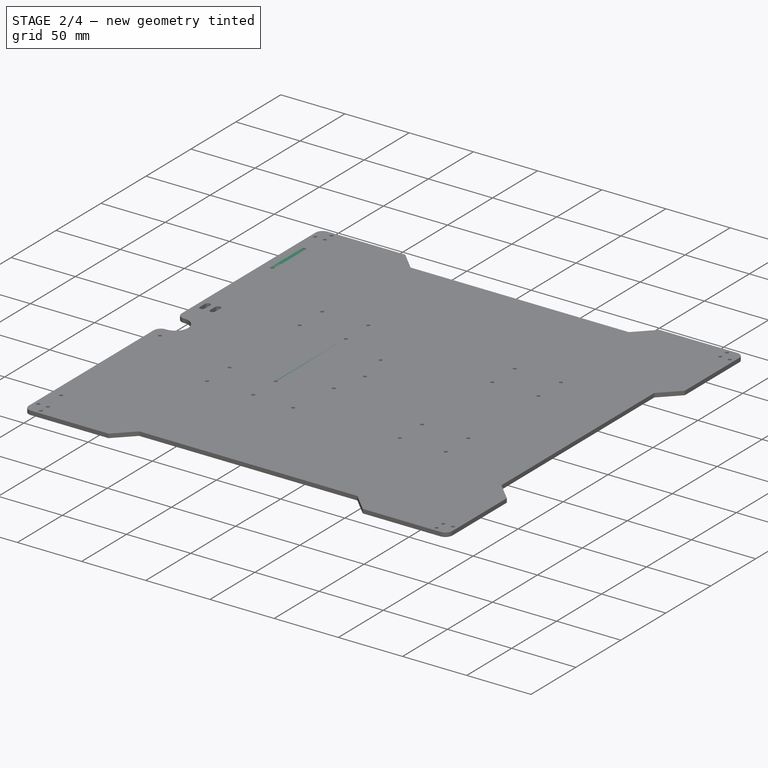
[diagram: stage 2 of 4 — iso view after this stage's code; geometry added in this stage tinted green]
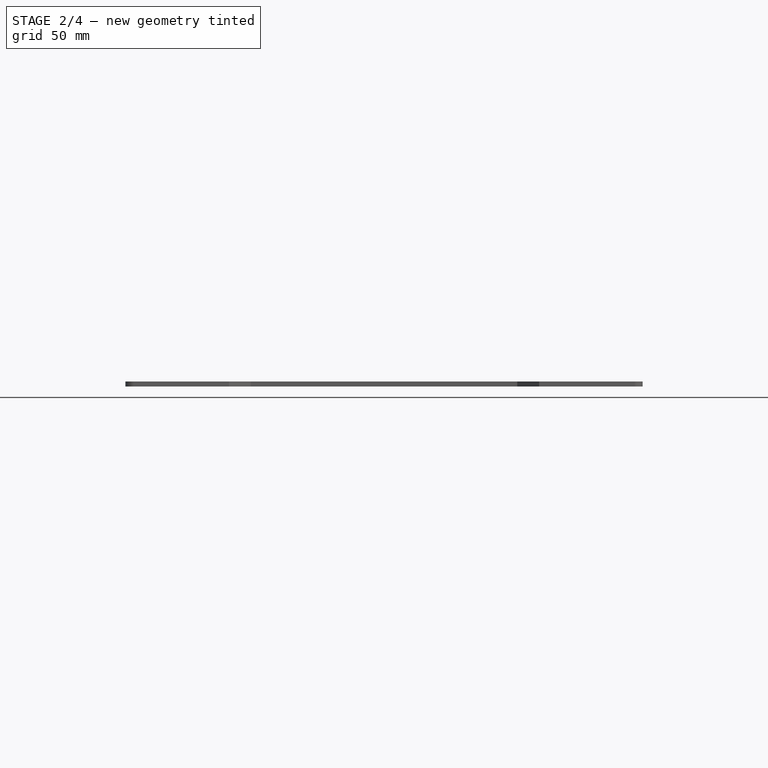
[diagram: stage 2 of 4 — front view after this stage's code; geometry added in this stage tinted green]
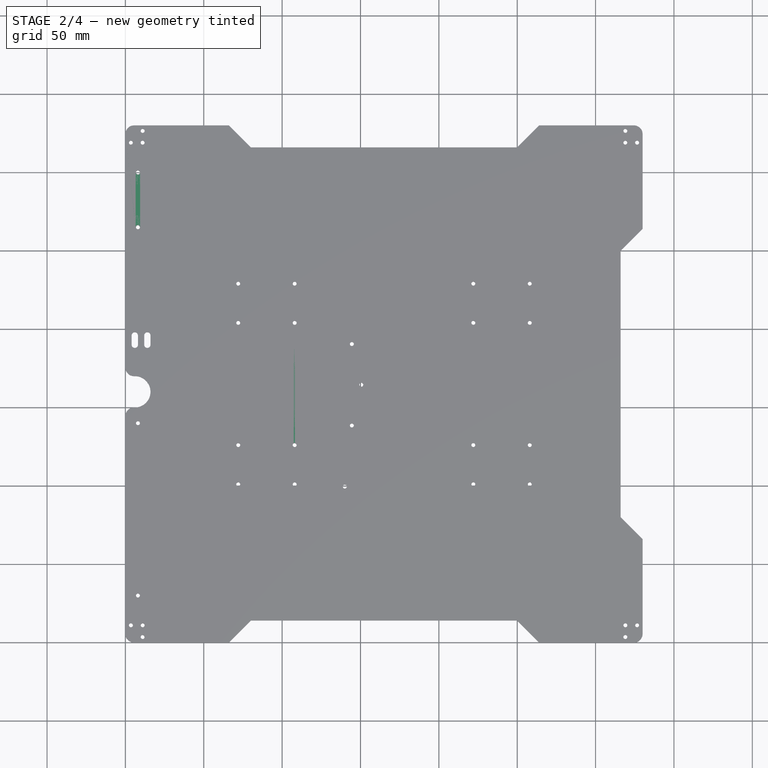
[diagram: stage 2 of 4 — top view after this stage's code; geometry added in this stage tinted green]
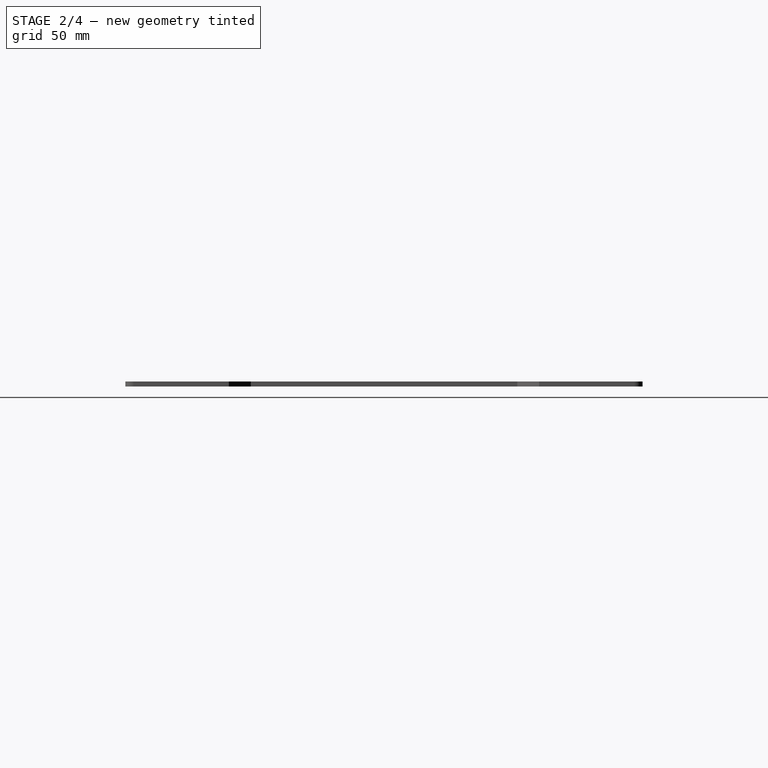
[diagram: stage 2 of 4 — right view after this stage's code; geometry added in this stage tinted green]
FEATURE [Sketcher::SketchObject] Sketch006
  ExternalGeometry = -> [Fillet]
  Placement = pos=(0,0,3.175) rot=(0,0,1;0rad)
  sketch-geometry (4):
    g0: ArcOfCircle CenterX=0 CenterY=160 CenterZ=0 NormalX=0 NormalY=0 NormalZ=1 Radius=10 StartAngle=1.5708 EndAngle=4.71239
    g1: ArcOfCircle CenterX=6 CenterY=160 CenterZ=0 NormalX=0 NormalY=0 NormalZ=1 Radius=10 StartAngle=4.71239 EndAngle=7.85398
    g2: LineSegment StartX=0 StartY=150 StartZ=0 EndX=6 EndY=150 EndZ=0
    g3: LineSegment StartX=-7.4e-11 StartY=170 StartZ=0 EndX=6 EndY=170 EndZ=0
  constraints (10):
    c: Tangent(g0,g3) = 1.5708
    c: Tangent(g0,g2) = -1.5708
    c: Tangent(g2,g1) = -1.5708
    c: Tangent(g3,g1) = 1.5708
    c: Horizontal(g2)
    c: Equal(g0,g1)
    c: PointOnObject(g0,g-3)
    c: DistanceY(g-1,g0) = 160
    c: Radius(g1) = 10
    c: DistanceX(g3) = 6
FEATURE [PartDesign::Pocket] Pocket005
  Length = 5
  Type = 0
FEATURE [PartDesign::Fillet] Fillet001
  Base = -> Pocket005 [Edge160,Edge157]
  Radius = 5.5
FEATURE [Drawing::FeatureView] dimText030
  Rotation = 0
  ViewResult = <g> <text x="210.000000" y="100.000000" font-family="inherit" font-size="3" fill="rgb(0,0,0)" text-anchor="inherit" transform="rotate(0.000000 210.000000,100.000000)" >etching and cosmetic surface details.</text> </g>
  Visible = true
  X = 0
  Y = 0
FEATURE [Drawing::FeatureView] dimText019
  Rotation = 0
  ViewResult = <g> <text x="222.928694" y="94.000587" font-family="inherit" font-size="5" fill="rgb(106,106,106)" text-anchor="inherit" transform="rotate(0.000000 222.928694,94.000587)" >-----</text> </g>
  Visible = true
  X = 0
  Y = 0
FEATURE [Drawing::FeatureView] dimText020
  Rotation = 0
  ViewResult = <g> <text x="222.624976" y="100.226797" font-family="inherit" font-size="5" fill="rgb(109,109,109)" text-anchor="inherit" transform="rotate(0.000000 222.624976,100.226797)" >-----</text> </g>
  Visible = true
  X = 0
  Y = 0
FEATURE [Drawing::FeatureView] dimText021
  Rotation = 0
  ViewResult = <g> <text x="221.561965" y="93.241293" font-family="inherit" font-size="5" fill="rgb(109,109,109)" text-anchor="inherit" transform="rotate(90.000000 221.561965,93.241293)" >---</text> </g>
  Visible = true
  X = 0
  Y = 0
FEATURE [Drawing::FeatureView] dimText022
  Rotation = 0
  ViewResult = <g> <text x="230.521633" y="93.089434" font-family="inherit" font-size="5" fill="rgb(109,109,109)" text-anchor="inherit" transform="rotate(90.000000 230.521633,93.089434)" >---</text> </g>
  Visible = true
  X = 0
  Y = 0
FEATURE [Drawing::FeatureView] grabPoint001
  Rotation = 0
  ViewResult = <g> <line x1="84.3317101355" y1="96.1150449763" x2="84.3317101355" y2="96.1150449763" style="stroke:rgb(0,0,0);stroke-width:0.01" /> </g> 
  Visible = true
  X = 0
  Y = 0
FEATURE [Drawing::FeatureView] dimText023
  Rotation = 0
  ViewResult = <g> <text x="177.936452" y="164.138472" font-family="inherit" font-size="3" fill="rgb(0,0,0)" text-anchor="inherit" transform="rotate(0.000000 177.936452,164.138472)" >Ink mark here with supplier name after powder coat</text> </g>
  Visible = true
  X = 0
  Y = 0
FEATURE [Drawing::FeatureView] grabPoint002
  Rotation = 0
  ViewResult = <g> <line x1="227.028881199" y1="95.8228923324" x2="227.028881199" y2="95.8228923324" style="stroke:rgb(0,0,0);stroke-width:0.01" /> </g> 
  Visible = true
  X = 0
  Y = 0
FEATURE [Drawing::FeatureView] dimLine006
  Rotation = 0
  ViewResult = <g   >\n<line x1="172.317199" y1="166.631606" x2="227.028881" y2="95.822892" style="stroke:rgb(109,109,109);stroke-width:0.20" />\n<polygon points="227.028881,95.822892 224.601145,97.738251 225.194626,98.196815 225.788106,98.655378" style="fill:rgb(109,109,109);stroke:rgb(109,109,109);stroke-width:0" />\n<line x1="172.317199" y1="166.631606" x2="255.851678" y2="166.631606" style="stroke:rgb(109,109,109);stroke-width:0.20" />\n</g> 
  Visible = true
  X = 0
  Y = 0
FEATURE [Drawing::FeatureView] dimText024
  Rotation = 0
  ViewResult = <g> <text x="23.566670" y="151.797078" font-family="inherit" font-size="5" fill="rgb(255,0,0)" text-anchor="inherit" transform="rotate(0.000000 23.566670,151.797078)" >-----------</text> </g>
  Visible = true
  X = 0
  Y = 0
FEATURE [Drawing::FeatureView] dimText025
  Rotation = 0
  ViewResult = <g> <text x="23.843925" y="145.836097" font-family="inherit" font-size="5" fill="rgb(255,0,0)" text-anchor="inherit" transform="rotate(0.000000 23.843925,145.836097)" >-----------</text> </g>
  Visible = true
  X = 0
  Y = 0
FEATURE [Drawing::FeatureView] dimText026
  Rotation = 0
  ViewResult = <g> <text x="87.951545" y="72.765667" font-family="inherit" font-size="5" fill="rgb(255,0,0)" text-anchor="inherit" transform="rotate(0.000000 87.951545,72.765667)" >-----------</text> </g>
  Visible = true
  X = 0
  Y = 0
FEATURE [Drawing::FeatureView] dimText028
  Rotation = 0
  ViewResult = <g> <text x="88.267918" y="68.230995" font-family="inherit" font-size="5" fill="rgb(255,0,0)" text-anchor="inherit" transform="rotate(0.000000 88.267918,68.230995)" >-----------</text> </g>
  Visible = true
  X = 0
  Y = 0
FEATURE [Drawing::FeatureView] dimText031
  Rotation = 0
  ViewResult = <g> <text x="86.475141" y="66.438218" font-family="inherit" font-size="5" fill="rgb(255,0,0)" text-anchor="inherit" transform="rotate(90.000000 86.475141,66.438218)" >---</text> </g>
  Visible = true
  X = 0
  Y = 0
FEATURE [Drawing::FeatureView] dimText036
  Rotation = 0
  ViewResult = <g> <text x="106.828436" y="66.438218" font-family="inherit" font-size="5" fill="rgb(255,0,0)" text-anchor="inherit" transform="rotate(90.000000 106.828436,66.438218)" >---</text> </g>
  Visible = true
  X = 0
  Y = 0
FEATURE [Drawing::FeatureView] dimText037
  Rotation = 0
  ViewResult = <g> <text x="42.077538" y="144.793132" font-family="inherit" font-size="5" fill="rgb(255,0,0)" text-anchor="inherit" transform="rotate(90.000000 42.077538,144.793132)" >---</text> </g>
  Visible = true
  X = 0
  Y = 0
FEATURE [Drawing::FeatureView] dimText038
  Rotation = 0
  ViewResult = <g> <text x="22.884275" y="144.687674" font-family="inherit" font-size="5" fill="rgb(255,0,0)" text-anchor="inherit" transform="rotate(90.000000 22.884275,144.687674)" >---</text> </g>
  Visible = true
  X = 0
  Y = 0
FEATURE [Drawing::FeatureView] grabPoint003
  Rotation = 0
  ViewResult = <g> <line x1="34.273683756" y1="146.691366476" x2="34.273683756" y2="146.691366476" style="stroke:rgb(0,0,0);stroke-width:0.01" /> </g> 
  Visible = true
  X = 0
  Y = 0
FEATURE [Drawing::FeatureView] grabPoint004
  Rotation = 0
  ViewResult = <g> <line x1="96.4847182262" y1="69.7018912703" x2="96.4847182262" y2="69.7018912703" style="stroke:rgb(0,0,0);stroke-width:0.01" /> </g> 
  Visible = true
  X = 0
  Y = 0
FEATURE [Drawing::FeatureView] dimLine007
  Rotation = 0
  ViewResult = <g   >\n<line x1="45.000000" y1="55.000000" x2="34.273684" y2="146.691366" style="stroke:rgb(255,0,0);stroke-width:0.20" />\n<polygon points="34.273684,146.691366 35.367175,143.798829 34.622255,143.711686 33.877335,143.624543" style="fill:rgb(255,0,0);stroke:rgb(255,0,0);stroke-width:0" />\n<line x1="45.000000" y1="55.000000" x2="95.000000" y2="55.000000" style="stroke:rgb(255,0,0);stroke-width:0.20" />\n</g> 
  Visible = true
  X = 0
  Y = 0
FEATURE [Drawing::FeatureView] dimLine008
  Rotation = 0
  ViewResult = <g   >\n<line x1="95.000000" y1="55.000000" x2="96.484718" y2="69.701891" style="stroke:rgb(255,0,0);stroke-width:0.20" />\n<polygon points="96.484718,69.701891 96.929491,66.641715 96.183287,66.717073 95.437082,66.792431" style="fill:rgb(255,0,0);stroke:rgb(255,0,0);stroke-width:0" />\n<line x1="95.000000" y1="55.000000" x2="45.000000" y2="55.000000" style="stroke:rgb(255,0,0);stroke-width:0.20" />\n</g> 
  Visible = true
  X = 0
  Y = 0
FEATURE [Drawing::FeatureView] dimText039
  Rotation = 0
  ViewResult = <g> <text x="52.401183" y="47.410594" font-family="inherit" font-size="3" fill="rgb(0,0,0)" text-anchor="inherit" transform="rotate(0.000000 52.401183,47.410594)" >#4 grain these areas</text> </g>
  Visible = true
  X = 0
  Y = 0
FEATURE [Drawing::FeatureView] dimText040
  Rotation = 0
  ViewResult = <g> <text x="23.954827" y="52.068477" font-family="inherit" font-size="3" fill="rgb(0,0,0)" text-anchor="inherit" transform="rotate(0.000000 23.954827,52.068477)" >Areas must be free of ink, dyes and or stain prior to powder coat</text> </g>
  Visible = true
  X = 0
  Y = 0
FEATURE [Drawing::FeatureView] dimText041
  Rotation = 0
  ViewResult = <g> <text x="54.896478" y="64.045891" font-family="inherit" font-size="3" fill="rgb(0,0,0)" text-anchor="inherit"  >Grain direction</text> </g>
  Visible = true
  X = 0
  Y = 0
FEATURE [Drawing::FeatureView] grabPoint005
  Rotation = 0
  ViewResult = <g> <line x1="50.0" y1="65.0" x2="50.0" y2="65.0" style="stroke:rgb(0,0,0);stroke-width:0.01" /> </g> 
  Visible = true
  X = 0
  Y = 0
FEATURE [Drawing::FeatureView] grabPoint006
  Rotation = 0
  ViewResult = <g> <line x1="85.0" y1="65.0" x2="85.0" y2="65.0" style="stroke:rgb(0,0,0);stroke-width:0.01" /> </g> 
  Visible = true
  X = 0
  Y = 0
FEATURE [Drawing::FeatureView] dimLine009
  Rotation = 0
  ViewResult = <g   >\n<line x1="80.000000" y1="65.000000" x2="50.000000" y2="65.000000" style="stroke:rgb(255,0,0);stroke-width:0.20" />\n<polygon points="50.000000,65.000000 53.000000,65.750000 53.000000,65.000000 53.000000,64.250000" style="fill:rgb(255,0,0);stroke:rgb(255,0,0);stroke-width:0" />\n<line x1="80.000000" y1="65.000000" x2="80.000000" y2="65.000000" style="stroke:rgb(255,0,0);stroke-width:0.20" />\n</g> 
  Visible = true
  X = 0
  Y = 0
FEATURE [Drawing::FeatureView] dimLine010
  Rotation = 0
  ViewResult = <g   >\n<line x1="70.000000" y1="65.000000" x2="85.000000" y2="65.000000" style="stroke:rgb(255,0,0);stroke-width:0.20" />\n<polygon points="85.000000,65.000000 82.000000,64.250000 82.000000,65.000000 82.000000,65.750000" style="fill:rgb(255,0,0);stroke:rgb(255,0,0);stroke-width:0" />\n<line x1="70.000000" y1="65.000000" x2="55.000000" y2="65.000000" style="stroke:rgb(255,0,0);stroke-width:0.20" />\n</g> 
  Visible = true
  X = 0
  Y = 0
FEATURE [Drawing::FeatureView] dimText042
  Rotation = 0
  ViewResult = <g> <text x="49.071040" y="184.213208" font-family="inherit" font-size="3" fill="rgb(0,0,0)" text-anchor="inherit" transform="rotate(0.000000 49.071040,184.213208)" >Alternately these 4 holes may be laser etched after the powder coat process</text> </g>
  Visible = true
  X = 0
  Y = 0
FEATURE [Drawing::FeaturePage] Page001
  EditableTexts = Scale | 300mm Bed Plate, 6061 | D | PP-MP0145 | 2 of 3
  Group = -> [View001,dimText011,View002,dimText012,dimLine001,dimLine002,dimLine003,dimLine004,dimLine005,dimText019,dimText020,dimText021,dimText022,grabPoint001,dimText023,grabPoint002,dimLine006,dimText024,dimText025,dimText026,dimText028,dimText031,dimText036,dimText037,dimText038,grabPoint003,grabPoint004,dimLine007,dimLine008,dimText039,dimText040,dimText041,grabPoint005,grabPoint006,dimLine009,+2 more]
FEATURE [Drawing::FeatureView] dimText043
  Rotation = 0
  ViewResult = <g> <text x="210.000000" y="105.000000" font-family="inherit" font-size="3" fill="rgb(0,0,0)" text-anchor="inherit"  >Grain callout is for cosmetic surface </text> </g>
  Visible = true
  X = 0
  Y = 0
FEATURE [Drawing::FeatureView] dimText044
  Rotation = 0
  ViewResult = <g> <text x="210.000000" y="110.000000" font-family="inherit" font-size="3" fill="rgb(0,0,0)" text-anchor="inherit" transform="rotate(0.000000 210.000000,110.000000)" >under laser etching only.</text> </g>
  Visible = true
  X = 0
  Y = 0
FEATURE [Drawing::FeatureView] dimText027
  Rotation = 0
  ViewResult = <g> <text x="205.000000" y="115.000000" font-family="inherit" font-size="3" fill="rgb(0,0,0)" text-anchor="inherit" transform="rotate(0.000000 205.000000,115.000000)" >6. See additional documentation for location</text> </g>
  Visible = true
  X = 0
  Y = 0
FEATURE [Drawing::FeatureView] dimText045
  Rotation = 0
  ViewResult = <g> <text x="210.000000" y="120.000000" font-family="inherit" font-size="3" fill="rgb(0,0,0)" text-anchor="inherit" transform="rotate(0.000000 210.000000,120.000000)" > and artwork for laser etching.</text> </g>
  Visible = true
  X = 0
  Y = 0
FEATURE [Drawing::FeatureView] dimText046
  Rotation = 0
  ViewResult = <g> <text x="60.000000" y="185.000000" font-family="inherit" font-size="3" fill="rgb(0,0,0)" text-anchor="inherit" transform="rotate(0.000000 60.000000,185.000000)" >C</text> </g>
  Visible = true
  X = 0
  Y = 0
FEATURE [Drawing::FeatureView] dimText047
  Rotation = 0
  ViewResult = <g> <text x="70.000000" y="185.000000" font-family="inherit" font-size="3" fill="rgb(0,0,0)" text-anchor="inherit" transform="rotate(0.000000 70.000000,185.000000)" >7.20.16</text> </g>
  Visible = true
  X = 0
  Y = 0
FEATURE [Drawing::FeatureView] dimText048
  Rotation = 0
  ViewResult = <g> <text x="85.000000" y="185.000000" font-family="inherit" font-size="3" fill="rgb(0,0,0)" text-anchor="inherit"  >Masking notes updated</text> </g>
  Visible = true
  X = 0
  Y = 0
FEATURE [Drawing::FeatureView] dimText049
  Rotation = 0
  ViewResult = <g> <text x="85.000000" y="187.500000" font-family="inherit" font-size="3" fill="rgb(0,0,0)" text-anchor="inherit" transform="rotate(0.000000 85.000000,187.500000)" >Dimensional tollerances modified</text> </g>
  Visible = true
  X = 0
  Y = 0
FEATURE [Drawing::FeatureView] dimText050
  Rotation = 0
  ViewResult = <g> <text x="85.000000" y="190.000000" font-family="inherit" font-size="3" fill="rgb(0,0,0)" text-anchor="inherit" transform="rotate(0.000000 85.000000,190.000000)" > for manufacturability.</text> </g>
  Visible = true
  X = 0
  Y = 0
FEATURE [Sketcher::SketchObject] Sketch010
  ExternalGeometry = -> [Pad001]
  Placement = pos=(0,0,3.175) rot=(0,0,1;0rad)
  Support = -> Pad001 [Face5]
  sketch-geometry (16):
    g0: LineSegment StartX=37.5 StartY=14.9904 StartZ=0 EndX=30 EndY=2 EndZ=0
    g1: LineSegment StartX=30 StartY=2 StartZ=0 EndX=45 EndY=2 EndZ=0
    g2: LineSegment StartX=45 StartY=2 StartZ=0 EndX=37.5 EndY=14.9904 EndZ=0
    g3: Circle [constr] CenterX=37.5 CenterY=6.33013 CenterZ=0 NormalX=0 NormalY=0 NormalZ=1 Radius=8.66025
    g4: LineSegment StartX=54.5 StartY=14.9904 StartZ=0 EndX=47 EndY=2 EndZ=0
    g5: LineSegment StartX=47 StartY=2 StartZ=0 EndX=62 EndY=2 EndZ=0
    g6: LineSegment StartX=62 StartY=2 StartZ=0 EndX=54.5 EndY=14.9904 EndZ=0
    g7: Circle [constr] CenterX=54.5 CenterY=6.33013 CenterZ=0 NormalX=0 NormalY=0 NormalZ=1 Radius=8.66025
    g8: LineSegment StartX=292.5 StartY=315.01 StartZ=0 EndX=300 EndY=328 EndZ=0
    g9: LineSegment StartX=300 StartY=328 StartZ=0 EndX=285 EndY=328 EndZ=0
    g10: LineSegment StartX=285 StartY=328 StartZ=0 EndX=292.5 EndY=315.01 EndZ=0
    g11: Circle [constr] CenterX=292.5 CenterY=323.67 CenterZ=0 NormalX=0 NormalY=0 NormalZ=1 Radius=8.66025
    g12: LineSegment StartX=275.5 StartY=315.01 StartZ=0 EndX=283 EndY=328 EndZ=0
    g13: LineSegment StartX=283 StartY=328 StartZ=0 EndX=268 EndY=328 EndZ=0
    g14: LineSegment StartX=268 StartY=328 StartZ=0 EndX=275.5 EndY=315.01 EndZ=0
    g15: Circle [constr] CenterX=275.5 CenterY=323.67 CenterZ=0 NormalX=0 NormalY=0 NormalZ=1 Radius=8.66025
  constraints (48):
    c: Coincident(g0,g1)
    c: Coincident(g1,g2)
    c: Coincident(g2,g0)
    c: Equal(g0,g1)
    c: Equal(g0,g2)
    c: PointOnObject(g0,g3)
    c: PointOnObject(g1,g3)
    c: PointOnObject(g2,g3)
    c: Coincident(g4,g5)
    c: Coincident(g5,g6)
    c: Coincident(g6,g4)
    c: Equal(g4,g5)
    c: Equal(g4,g6)
    c: PointOnObject(g4,g7)
    c: PointOnObject(g5,g7)
    c: PointOnObject(g6,g7)
    c: Equal(g6,g2)
    c: PointOnObject(g1,g5)
    c: Horizontal(g1)
    c: Horizontal(g5)
    c: DistanceX(g5,g5) = 15
    c: DistanceY(g-1,g0) = 2
    c: DistanceX(g-1,g5) = 62
    c: DistanceX(g-1,g0) = 30
    c: Coincident(g8,g9)
    c: Coincident(g9,g10)
    c: Coincident(g10,g8)
    c: Equal(g8,g9)
    c: Equal(g8,g10)
    c: PointOnObject(g8,g11)
    c: PointOnObject(g9,g11)
    c: PointOnObject(g10,g11)
    c: Coincident(g12,g13)
    c: Coincident(g13,g14)
    c: Coincident(g14,g12)
    c: Equal(g12,g13)
    c: Equal(g12,g14)
    c: PointOnObject(g12,g15)
    c: PointOnObject(g13,g15)
    c: PointOnObject(g14,g15)
    c: Equal(g10,g12)
    c: Equal(g12,g6)
    c: Horizontal(g9)
    c: Horizontal(g13)
    c: DistanceY(g8,g-3) = 2
    c: DistanceX(g8,g-4) = 30
    c: DistanceX(g13,g-4) = 62
    c: PointOnObject(g9,g13)
FEATURE [PartDesign::Pocket] Pocket007
  Length = 0.1
  Sketch = -> Sketch010
  Type = 0
FEATURE [Drawing::FeatureViewPart] View003
  Direction = (0,0,1)
  HiddenWidth = 0.15
  LineWidth = 0.35
  Rotation = 0
  Scale = 0.5
  ShowHiddenLines = false
  ShowSmoothLines = false
  Source = -> Pocket007
  Tolerance = 0.05
  ViewResult = <blob: 6936 chars omitted>
  Visible = true
  X = 50
  Y = 175
FEATURE [Drawing::FeatureView] dim049
  Rotation = 0
  ViewResult = <g> \n  <line x1="67.000000" y1="174.000000" x2="101.339723" y2="174.000000" style="stroke:rgb(0,0,255);stroke-width:0.20" />\n<line x1="85.000000" y1="175.000000" x2="101.339723" y2="175.000000" style="stroke:rgb(0,0,255);stroke-width:0.20" />\n<line x1="100.339723" y1="174.000000" x2="100.339723" y2="175.000000" style="stroke:rgb(0,0,255);stroke-width:0.20" /> \n  <polygon points="100.339723,175.000000 99.589723,178.000000 100.339723,178.000000 101.089723,178.000000" style="fill:rgb(0,0,255);stroke:rgb(0,0,255);stroke-width:0" /><polygon points="100.339723,174.000000 101.089723,171.000000 100.339723,171.000000 99.589723,171.000000" style="fill:rgb(0,0,255);stroke:rgb(0,0,255);stroke-width:0" /> \n  <text x="101.225575" y="181.369460" font-family="Verdana" font-size="3" fill="rgb(0,0,0)" text-anchor="middle" transform="rotate(-90.000000 101.225575,181.369460)" >2.0</text> </g>
  Visible = true
  X = 0
  Y = 0
FEATURE [Drawing::FeatureView] dim050
  Rotation = 0
  ViewResult = <g> <line x1="50.000000" y1="174.250000" x2="50.000000" y2="183.775276" style="stroke:rgb(0,0,255);stroke-width:0.20" />\n<line x1="65.000000" y1="176.000069" x2="65.000000" y2="183.775276" style="stroke:rgb(0,0,255);stroke-width:0.20" />\n<line x1="50.000000" y1="182.775276" x2="65.000000" y2="182.775276" style="stroke:rgb(0,0,255);stroke-width:0.20" />\n<polygon points="50.000000,182.775276 53.000000,183.525276 53.000000,182.775276 53.000000,182.025276" style="fill:rgb(0,0,255);stroke:rgb(0,0,255);stroke-width:0" />\n<polygon points="65.000000,182.775276 62.000000,182.025276 62.000000,182.775276 62.000000,183.525276" style="fill:rgb(0,0,255);stroke:rgb(0,0,255);stroke-width:0" />\n<text x="58.058305" y="187.225485" font-family="Verdana" font-size="3" fill="rgb(0,0,0)" text-anchor="middle"  >30.0</text> </g> 
  Visible = true
  X = 0
  Y = 0
FEATURE [Drawing::FeatureView] dim051
  Rotation = 0
  ViewResult = <g> \n  <line x1="215.000000" y1="14.750000" x2="215.000000" y2="32.321368" style="stroke:rgb(0,0,255);stroke-width:0.20" />\n<line x1="200.000000" y1="13.000000" x2="200.000000" y2="32.321368" style="stroke:rgb(0,0,255);stroke-width:0.20" />\n<line x1="215.000000" y1="31.321368" x2="200.000000" y2="31.321368" style="stroke:rgb(0,0,255);stroke-width:0.20" /> \n  <polygon points="200.000000,31.321368 203.000000,32.071368 203.000000,31.321368 203.000000,30.571368" style="fill:rgb(0,0,255);stroke:rgb(0,0,255);stroke-width:0" /><polygon points="215.000000,31.321368 212.000000,30.571368 212.000000,31.321368 212.000000,32.071368" style="fill:rgb(0,0,255);stroke:rgb(0,0,255);stroke-width:0" /> \n  <text x="219.972376" y="32.766970" font-family="Verdana" font-size="3" fill="rgb(0,0,0)" text-anchor="middle"  >30.0</text> </g>
  Visible = true
  X = 0
  Y = 0
FEATURE [Drawing::FeatureView] dim052
  Rotation = 0
  ViewResult = <g> <line x1="214.250000" y1="10.000000" x2="227.718517" y2="10.000000" style="stroke:rgb(0,0,255);stroke-width:0.20" />\n<line x1="202.000030" y1="11.000000" x2="227.718517" y2="11.000000" style="stroke:rgb(0,0,255);stroke-width:0.20" />\n<line x1="226.718517" y1="10.000000" x2="226.718517" y2="11.000000" style="stroke:rgb(0,0,255);stroke-width:0.20" />\n<polygon points="226.718517,10.000000 227.468517,7.000000 226.718517,7.000000 225.968517,7.000000" style="fill:rgb(0,0,255);stroke:rgb(0,0,255);stroke-width:0" />\n<polygon points="226.718517,11.000000 225.968517,14.000000 226.718517,14.000000 227.468517,14.000000" style="fill:rgb(0,0,255);stroke:rgb(0,0,255);stroke-width:0" />\n<text x="227.923185" y="19.033754" font-family="Verdana" font-size="3" fill="rgb(0,0,0)" text-anchor="middle" transform="rotate(-90.000000 227.923185,19.033754)" >2.0</text> </g> 
  Visible = true
  X = 0
  Y = 0
FEATURE [Drawing::FeaturePage] Page002
  EditableTexts = 1:2 | Laser Etching for PP-MP0145 | D | PP-FP0080 (laser etched part #) | 3 of 3
  Group = -> [View003,dim049,dim050,dim051,dim052]
FEATURE [Drawing::FeatureView] dimText051
  Rotation = 0
  ViewResult = <g> <text x="60.000000" y="175.000000" font-family="inherit" font-size="3" fill="rgb(0,0,0)" text-anchor="inherit" transform="rotate(0.000000 60.000000,175.000000)" >D</text> </g>
  Visible = true
  X = 0
  Y = 0
FEATURE [Drawing::FeatureView] dimText052
  Rotation = 0
  ViewResult = <g> <text x="70.000000" y="175.000000" font-family="inherit" font-size="3" fill="rgb(0,0,0)" text-anchor="inherit" transform="rotate(0.000000 70.000000,175.000000)" >9.06.16</text> </g>
  Visible = true
  X = 0
  Y = 0
FEATURE [Drawing::FeatureView] dimText053
  Rotation = 0
  ViewResult = <g> <text x="85.000000" y="175.000000" font-family="inherit" font-size="3" fill="rgb(0,0,0)" text-anchor="inherit" transform="rotate(0.000000 85.000000,175.000000)" >Flatness spec changed to 1.3mm</text> </g>
  Visible = true
  X = 0
  Y = 0
FEATURE [Drawing::FeaturePage] Page
  EditableTexts = bam | 4/29/16 | 1:4 | 300mm Bed Plate, 6061 | D | PP-MP0145 | 1 of 3 | See Notes
  Group = -> [Ortho,Ortho001,View,centerLines001,centerLines002,centerLines003,centerLines004,centerLines005,centerLines006,centerLines007,dim001,dim002,dim003,dim004,dim005,dim006,dim007,dim008,dim009,dim010,dim011,dim012,dim013,dim014,dim015,dim016,dim017,dim018,dim019,dim020,dim021,dim033,dim034,dim035,dim036,dim037,dim038,dim039,dim040,dim041,dim042,dim043,dim044,dim045,dimText001,dimText002,dimText003,+45 more]
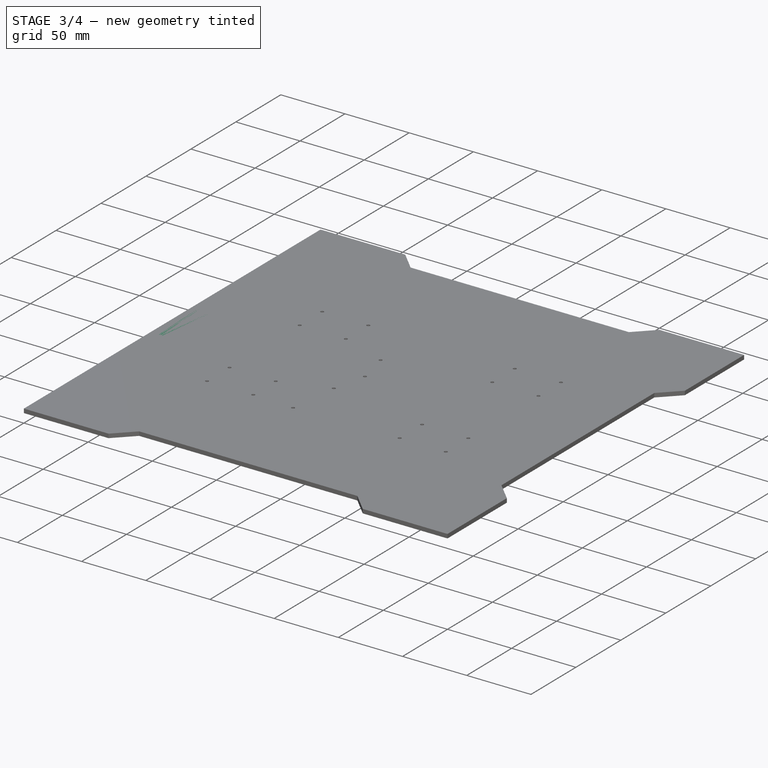
[diagram: stage 3 of 4 — iso view after this stage's code; geometry added in this stage tinted green]
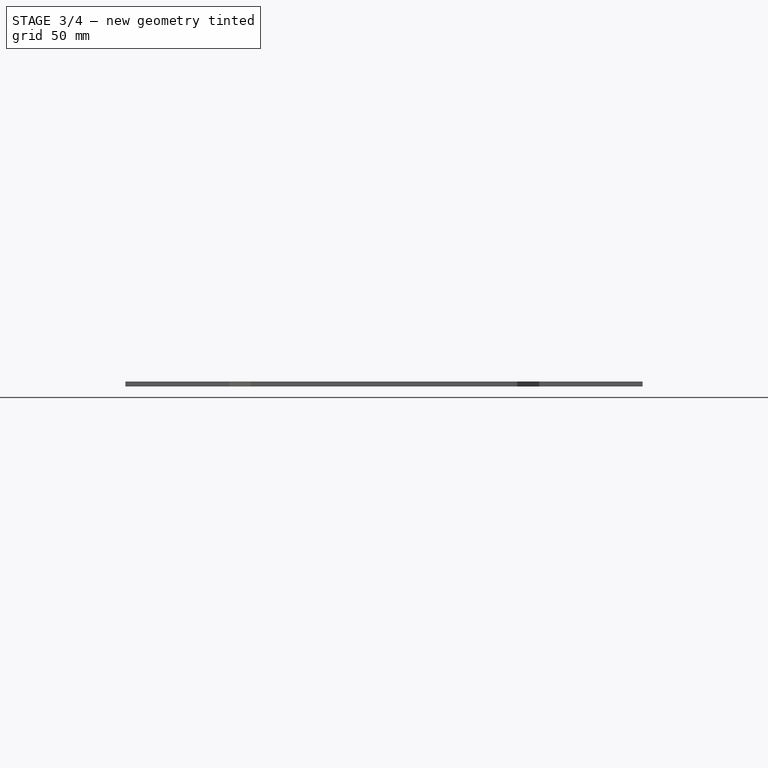
[diagram: stage 3 of 4 — front view after this stage's code; geometry added in this stage tinted green]
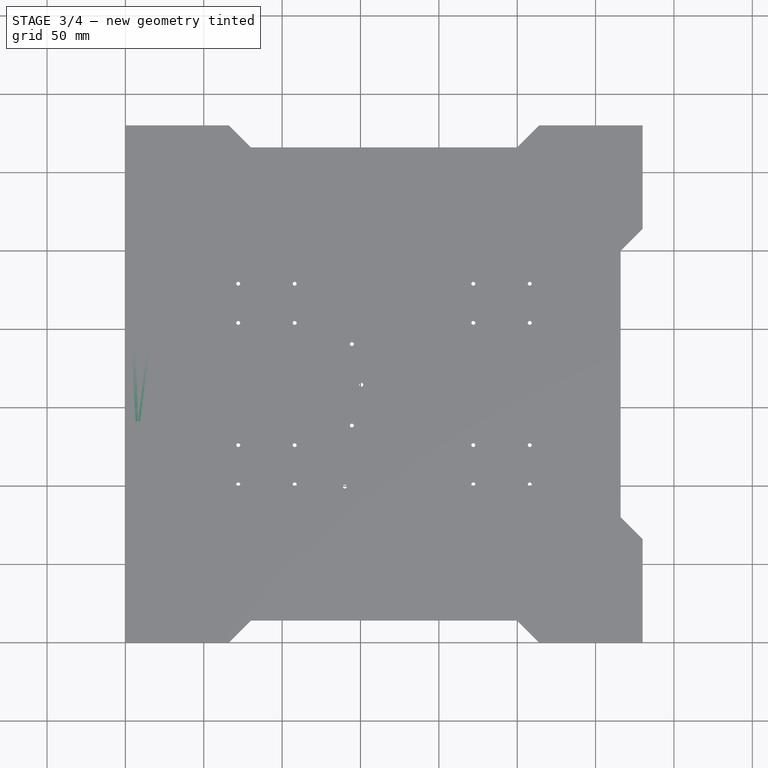
[diagram: stage 3 of 4 — top view after this stage's code; geometry added in this stage tinted green]
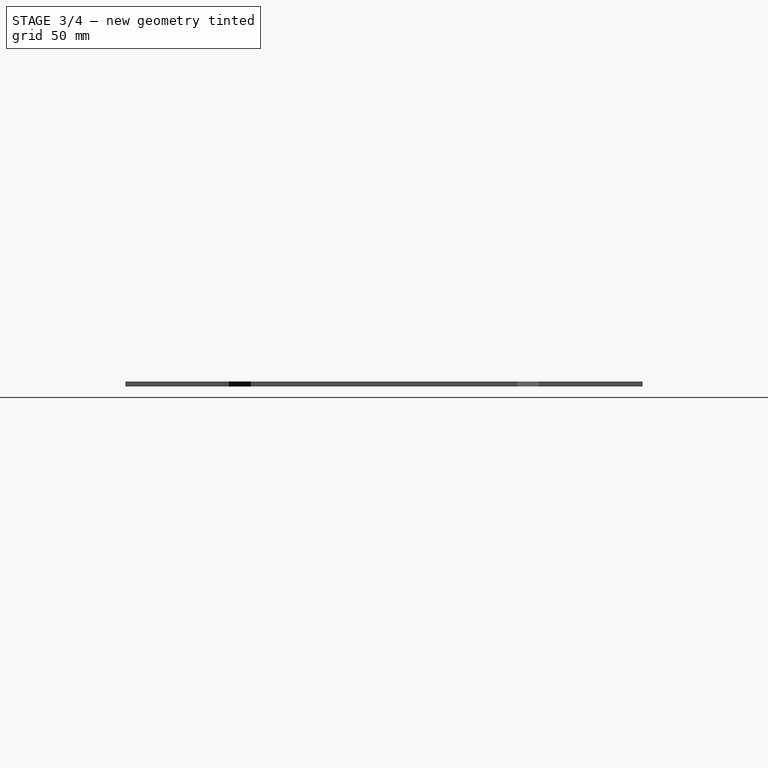
[diagram: stage 3 of 4 — right view after this stage's code; geometry added in this stage tinted green]
FEATURE [Sketcher::SketchObject] Sketch003
  Placement = pos=(0,0,3.175) rot=(0,0,1;0rad)
  sketch-geometry (32):
    g0: LineSegment [constr] StartX=72 StartY=229 StartZ=0 EndX=108 EndY=229 EndZ=0
    g1: LineSegment [constr] StartX=108 StartY=229 StartZ=0 EndX=108 EndY=204 EndZ=0
    g2: LineSegment [constr] StartX=108 StartY=204 StartZ=0 EndX=72 EndY=204 EndZ=0
    g3: LineSegment [constr] StartX=72 StartY=204 StartZ=0 EndX=72 EndY=229 EndZ=0
    g4: LineSegment [constr] StartX=72 StartY=126 StartZ=0 EndX=108 EndY=126 EndZ=0
    g5: LineSegment [constr] StartX=108 StartY=126 StartZ=0 EndX=108 EndY=101 EndZ=0
    g6: LineSegment [constr] StartX=108 StartY=101 StartZ=0 EndX=72 EndY=101 EndZ=0
    g7: LineSegment [constr] StartX=72 StartY=101 StartZ=0 EndX=72 EndY=126 EndZ=0
    g8: LineSegment [constr] StartX=222 StartY=229 StartZ=0 EndX=258 EndY=229 EndZ=0
    g9: LineSegment [constr] StartX=258 StartY=229 StartZ=0 EndX=258 EndY=204 EndZ=0
    g10: LineSegment [constr] StartX=258 StartY=204 StartZ=0 EndX=222 EndY=204 EndZ=0
    g11: LineSegment [constr] StartX=222 StartY=204 StartZ=0 EndX=222 EndY=229 EndZ=0
    g12: LineSegment [constr] StartX=222 StartY=126 StartZ=0 EndX=258 EndY=126 EndZ=0
    g13: LineSegment [constr] StartX=258 StartY=126 StartZ=0 EndX=258 EndY=101 EndZ=0
    g14: LineSegment [constr] StartX=258 StartY=101 StartZ=0 EndX=222 EndY=101 EndZ=0
    g15: LineSegment [constr] StartX=222 StartY=101 StartZ=0 EndX=222 EndY=126 EndZ=0
    g16: Circle CenterX=108 CenterY=229 CenterZ=0 NormalX=0 NormalY=0 NormalZ=1 Radius=1.5
    g17: Circle CenterX=72 CenterY=229 CenterZ=0 NormalX=0 NormalY=0 NormalZ=1 Radius=1.5
    g18: Circle CenterX=72 CenterY=204 CenterZ=0 NormalX=0 NormalY=0 NormalZ=1 Radius=1.5
    g19: Circle CenterX=108 CenterY=204 CenterZ=0 NormalX=0 NormalY=0 NormalZ=1 Radius=1.5
    g20: Circle CenterX=222 CenterY=204 CenterZ=0 NormalX=0 NormalY=0 NormalZ=1 Radius=1.5
    g21: Circle CenterX=222 CenterY=229 CenterZ=0 NormalX=0 NormalY=0 NormalZ=1 Radius=1.5
    g22: Circle CenterX=258 CenterY=229 CenterZ=0 NormalX=0 NormalY=0 NormalZ=1 Radius=1.5
    g23: Circle CenterX=258 CenterY=204 CenterZ=0 NormalX=0 NormalY=0 NormalZ=1 Radius=1.5
    g24: Circle CenterX=258 CenterY=126 CenterZ=0 NormalX=0 NormalY=0 NormalZ=1 Radius=1.5
    g25: Circle CenterX=222 CenterY=126 CenterZ=0 NormalX=0 NormalY=0 NormalZ=1 Radius=1.5
    g26: Circle CenterX=222 CenterY=101 CenterZ=0 NormalX=0 NormalY=0 NormalZ=1 Radius=1.5
    g27: Circle CenterX=258 CenterY=101 CenterZ=0 NormalX=0 NormalY=0 NormalZ=1 Radius=1.5
    g28: Circle CenterX=108 CenterY=101 CenterZ=0 NormalX=0 NormalY=0 NormalZ=1 Radius=1.5
    g29: Circle CenterX=108 CenterY=126 CenterZ=0 NormalX=0 NormalY=0 NormalZ=1 Radius=1.5
    g30: Circle CenterX=72 CenterY=126 CenterZ=0 NormalX=0 NormalY=0 NormalZ=1 Radius=1.5
    g31: Circle CenterX=72 CenterY=101 CenterZ=0 NormalX=0 NormalY=0 NormalZ=1 Radius=1.5
  constraints (80):
    c: Coincident(g0,g1)
    c: Coincident(g1,g2)
    c: Coincident(g2,g3)
    c: Coincident(g3,g0)
    c: Horizontal(g0)
    c: Horizontal(g2)
    c: Vertical(g1)
    c: Vertical(g3)
    c: Coincident(g4,g5)
    c: Coincident(g5,g6)
    c: Coincident(g6,g7)
    c: Coincident(g7,g4)
    c: Horizontal(g4)
    c: Horizontal(g6)
    c: Vertical(g5)
    c: Vertical(g7)
    c: Coincident(g8,g9)
    c: Coincident(g9,g10)
    c: Coincident(g10,g11)
    c: Coincident(g11,g8)
    c: Horizontal(g8)
    c: Horizontal(g10)
    c: Vertical(g9)
    c: Vertical(g11)
    c: Coincident(g12,g13)
    c: Coincident(g13,g14)
    c: Coincident(g14,g15)
    c: Coincident(g15,g12)
    c: Horizontal(g12)
    c: Horizontal(g14)
    c: Vertical(g13)
    c: Vertical(g15)
    c: Equal(g12,g4)
    c: Equal(g4,g2)
    c: Equal(g2,g10)
    c: Equal(g1,g11)
    c: Equal(g11,g5)
    c: Equal(g5,g15)
    c: DistanceX(g6) = 72
    c: DistanceY(g6) = 101
    c: PointOnObject(g2,g7)
    c: PointOnObject(g14,g6)
    c: DistanceX(g10) = 222
    c: DistanceY(g10) = 204
    c: PointOnObject(g10,g2)
    c: PointOnObject(g10,g15)
    c: DistanceX(g6) = -36
    c: DistanceY(g7) = 25
    c: Coincident(g16,g0)
    c: Coincident(g17,g0)
    c: Coincident(g18,g2)
    c: Coincident(g19,g1)
    c: Coincident(g20,g10)
    c: Coincident(g21,g8)
    c: Coincident(g22,g8)
    c: Coincident(g23,g9)
    c: Coincident(g24,g12)
    c: Coincident(g25,g12)
    c: Coincident(g26,g14)
    c: Coincident(g27,g13)
    c: Coincident(g28,g5)
    c: Coincident(g29,g4)
    c: Coincident(g30,g4)
    c: Coincident(g31,g6)
    c: Equal(g16,g17)
    c: Equal(g17,g20)
    c: Equal(g20,g21)
    c: Equal(g21,g22)
    c: Equal(g22,g23)
    c: Equal(g23,g24)
    c: Equal(g24,g25)
    c: Equal(g25,g26)
    c: Equal(g26,g27)
    c: Equal(g27,g18)
    c: Equal(g18,g19)
    c: Equal(g19,g30)
    c: Equal(g30,g29)
    c: Equal(g29,g28)
    c: Equal(g28,g31)
    c: Radius(g16) = 1.5
FEATURE [PartDesign::Pocket] Pocket002
  Length = 5
  Type = 0
FEATURE [Sketcher::SketchObject] Sketch004
  ExternalGeometry = -> [Pocket002]
  Placement = pos=(0,0,3.175) rot=(0,0,1;0rad)
  sketch-geometry (28):
    g0: LineSegment [constr] StartX=3.5 StartY=3.5 StartZ=0 EndX=11 EndY=3.5 EndZ=0
    g1: LineSegment [constr] StartX=11 StartY=3.5 StartZ=0 EndX=11 EndY=11 EndZ=0
    g2: LineSegment [constr] StartX=11 StartY=11 StartZ=0 EndX=3.5 EndY=11 EndZ=0
    g3: LineSegment [constr] StartX=3.5 StartY=11 StartZ=0 EndX=3.5 EndY=3.5 EndZ=0
    g4: LineSegment [constr] StartX=326.5 StartY=3.5 StartZ=0 EndX=319 EndY=3.5 EndZ=0
    g5: LineSegment [constr] StartX=319 StartY=3.5 StartZ=0 EndX=319 EndY=11 EndZ=0
    g6: LineSegment [constr] StartX=319 StartY=11 StartZ=0 EndX=326.5 EndY=11 EndZ=0
    g7: LineSegment [constr] StartX=326.5 StartY=11 StartZ=0 EndX=326.5 EndY=3.5 EndZ=0
    g8: LineSegment [constr] StartX=326.5 StartY=326.5 StartZ=0 EndX=319 EndY=326.5 EndZ=0
    g9: LineSegment [constr] StartX=319 StartY=326.5 StartZ=0 EndX=319 EndY=319 EndZ=0
    g10: LineSegment [constr] StartX=319 StartY=319 StartZ=0 EndX=326.5 EndY=319 EndZ=0
    g11: LineSegment [constr] StartX=326.5 StartY=319 StartZ=0 EndX=326.5 EndY=326.5 EndZ=0
    g12: LineSegment [constr] StartX=3.5 StartY=326.5 StartZ=0 EndX=11 EndY=326.5 EndZ=0
    g13: LineSegment [constr] StartX=11 StartY=326.5 StartZ=0 EndX=11 EndY=319 EndZ=0
    g14: LineSegment [constr] StartX=11 StartY=319 StartZ=0 EndX=3.5 EndY=319 EndZ=0
    g15: LineSegment [constr] StartX=3.5 StartY=319 StartZ=0 EndX=3.5 EndY=326.5 EndZ=0
    g16: Circle CenterX=11 CenterY=3.5 CenterZ=0 NormalX=0 NormalY=0 NormalZ=1 Radius=1.5
    g17: Circle CenterX=11 CenterY=11 CenterZ=0 NormalX=0 NormalY=0 NormalZ=1 Radius=1.5
    g18: Circle CenterX=3.5 CenterY=11 CenterZ=0 NormalX=0 NormalY=0 NormalZ=1 Radius=1.5
    g19: Circle CenterX=319 CenterY=3.5 CenterZ=0 NormalX=0 NormalY=0 NormalZ=1 Radius=1.5
    g20: Circle CenterX=319 CenterY=11 CenterZ=0 NormalX=0 NormalY=0 NormalZ=1 Radius=1.5
    g21: Circle CenterX=326.5 CenterY=11 CenterZ=0 NormalX=0 NormalY=0 NormalZ=1 Radius=1.5
    g22: Circle CenterX=326.5 CenterY=319 CenterZ=0 NormalX=0 NormalY=0 NormalZ=1 Radius=1.5
    g23: Circle CenterX=319 CenterY=319 CenterZ=0 NormalX=0 NormalY=0 NormalZ=1 Radius=1.5
    g24: Circle CenterX=319 CenterY=326.5 CenterZ=0 NormalX=0 NormalY=0 NormalZ=1 Radius=1.5
    g25: Circle CenterX=3.5 CenterY=319 CenterZ=0 NormalX=0 NormalY=0 NormalZ=1 Radius=1.5
    g26: Circle CenterX=11 CenterY=319 CenterZ=0 NormalX=0 NormalY=0 NormalZ=1 Radius=1.5
    g27: Circle CenterX=11 CenterY=326.5 CenterZ=0 NormalX=0 NormalY=0 NormalZ=1 Radius=1.5
  constraints (72):
    c: Coincident(g0,g1)
    c: Coincident(g1,g2)
    c: Coincident(g2,g3)
    c: Coincident(g3,g0)
    c: Horizontal(g0)
    c: Horizontal(g2)
    c: Vertical(g1)
    c: Vertical(g3)
    c: Coincident(g4,g5)
    c: Coincident(g5,g6)
    c: Coincident(g6,g7)
    c: Coincident(g7,g4)
    c: Horizontal(g4)
    c: Horizontal(g6)
    c: Vertical(g5)
    c: Vertical(g7)
    c: Coincident(g8,g9)
    c: Coincident(g9,g10)
    c: Coincident(g10,g11)
    c: Coincident(g11,g8)
    c: Horizontal(g8)
    c: Horizontal(g10)
    c: Vertical(g9)
    c: Vertical(g11)
    c: Coincident(g12,g13)
    c: Coincident(g13,g14)
    c: Coincident(g14,g15)
    c: Coincident(g15,g12)
    c: Horizontal(g12)
    c: Horizontal(g14)
    c: Vertical(g13)
    c: Vertical(g15)
    c: Equal(g10,g11)
    c: Equal(g11,g14)
    c: Equal(g14,g13)
    c: Equal(g13,g1)
    c: Equal(g1,g0)
    c: Equal(g0,g4)
    c: Equal(g4,g7)
    c: DistanceX(g-1,g0) = 3.5
    c: DistanceY(g-1,g0) = 3.5
    c: DistanceX(g-4,g8) = -3.5
    c: DistanceY(g8,g-4) = 3.5
    c: PointOnObject(g12,g8)
    c: PointOnObject(g14,g3)
    c: PointOnObject(g4,g0)
    c: PointOnObject(g10,g7)
    c: DistanceX(g6) = 7.5
    c: Coincident(g16,g0)
    c: Coincident(g17,g1)
    c: Coincident(g18,g2)
    c: Coincident(g19,g4)
    c: Coincident(g20,g5)
    c: Coincident(g21,g6)
    c: Coincident(g22,g10)
    c: Coincident(g23,g9)
    c: Coincident(g24,g8)
    c: Coincident(g25,g14)
    c: Coincident(g26,g13)
    c: Coincident(g27,g12)
    c: Radius(g22) = 1.5
    c: Equal(g22,g23)
    c: Equal(g22,g24)
    c: Equal(g22,g27)
    c: Equal(g22,g26)
    c: Equal(g22,g25)
    c: Equal(g22,g17)
    c: Equal(g22,g16)
    c: Equal(g22,g18)
    c: Equal(g22,g20)
    c: Equal(g22,g19)
    c: Equal(g22,g21)
FEATURE [PartDesign::Pocket] Pocket003
  Length = 5
  Type = 0
FEATURE [Sketcher::SketchObject] Sketch005
  ExternalGeometry = -> [Pocket003]
  Placement = pos=(0,0,3.175) rot=(0,0,1;0rad)
  sketch-geometry (15):
    g0: LineSegment [constr] StartX=8 StartY=30 StartZ=0 EndX=8 EndY=140 EndZ=0
    g1: Circle CenterX=8 CenterY=140 CenterZ=0 NormalX=0 NormalY=0 NormalZ=1 Radius=1.5
    g2: Circle CenterX=8 CenterY=30 CenterZ=0 NormalX=0 NormalY=0 NormalZ=1 Radius=1.5
    g3: LineSegment [constr] StartX=8 StartY=300 StartZ=0 EndX=8 EndY=265 EndZ=0
    g4: Circle CenterX=8 CenterY=300 CenterZ=0 NormalX=0 NormalY=0 NormalZ=1 Radius=1.5
    g5: Circle CenterX=8 CenterY=265 CenterZ=0 NormalX=0 NormalY=0 NormalZ=1 Radius=1.5
    g6: ArcOfCircle CenterX=6 CenterY=190 CenterZ=0 NormalX=0 NormalY=0 NormalZ=1 Radius=2 StartAngle=3.14159 EndAngle=6.28319
    g7: ArcOfCircle CenterX=6 CenterY=196 CenterZ=0 NormalX=0 NormalY=0 NormalZ=1 Radius=2 StartAngle=0 EndAngle=3.14159
    g8: LineSegment StartX=8 StartY=190 StartZ=0 EndX=8 EndY=196 EndZ=0
    g9: LineSegment StartX=4 StartY=190 StartZ=0 EndX=4 EndY=196 EndZ=0
    g10: ArcOfCircle CenterX=14 CenterY=190 CenterZ=0 NormalX=0 NormalY=0 NormalZ=1 Radius=2 StartAngle=3.14159 EndAngle=6.28319
    g11: ArcOfCircle CenterX=14 CenterY=196 CenterZ=0 NormalX=0 NormalY=0 NormalZ=1 Radius=2 StartAngle=0 EndAngle=3.14159
    g12: LineSegment StartX=16 StartY=190 StartZ=0 EndX=16 EndY=196 EndZ=0
    g13: LineSegment StartX=12 StartY=190 StartZ=0 EndX=12 EndY=196 EndZ=0
    g14: LineSegment [constr] StartX=6 StartY=190 StartZ=0 EndX=14 EndY=190 EndZ=0
  constraints (38):
    c: Vertical(g0)
    c: DistanceX(g-1,g0) = 8
    c: DistanceY(g0) = 110
    c: DistanceY(g-1,g0) = 30
    c: Coincident(g1,g0)
    c: Coincident(g2,g0)
    c: Radius(g2) = 1.5
    c: Equal(g2,g1)
    c: Vertical(g3)
    c: DistanceY(g3) = -35
    c: DistanceX(g-1,g3) = 8
    c: DistanceY(g3,g-3) = 30
    c: Coincident(g4,g3)
    c: Coincident(g5,g3)
    c: Equal(g1,g5)
    c: Equal(g5,g4)
    c: Tangent(g6,g9) = 1.5708
    c: Tangent(g6,g8) = -1.5708
    c: Tangent(g8,g7) = -1.5708
    c: Tangent(g9,g7) = 1.5708
    c: Vertical(g8)
    c: Equal(g6,g7)
    c: Tangent(g10,g13) = 1.5708
    c: Tangent(g10,g12) = -1.5708
    c: Tangent(g12,g11) = -1.5708
    c: Tangent(g13,g11) = 1.5708
    c: Vertical(g12)
    c: Equal(g10,g11)
    c: Coincident(g14,g6)
    c: Coincident(g14,g10)
    c: Horizontal(g14)
    c: DistanceY(g-1,g6) = 190
    c: Equal(g6,g10)
    c: Equal(g12,g8)
    c: Radius(g11) = 2
    c: DistanceX(g6,g10) = 4
    c: DistanceX(g-1,g6) = 8
    c: DistanceY(g9) = 6
FEATURE [PartDesign::Pocket] Pocket004
  Length = 5
  Type = 0
FEATURE [PartDesign::Fillet] Fillet
  Base = -> Pocket004 [Edge4,Edge130,Edge133,Edge124]
  Radius = 5.5
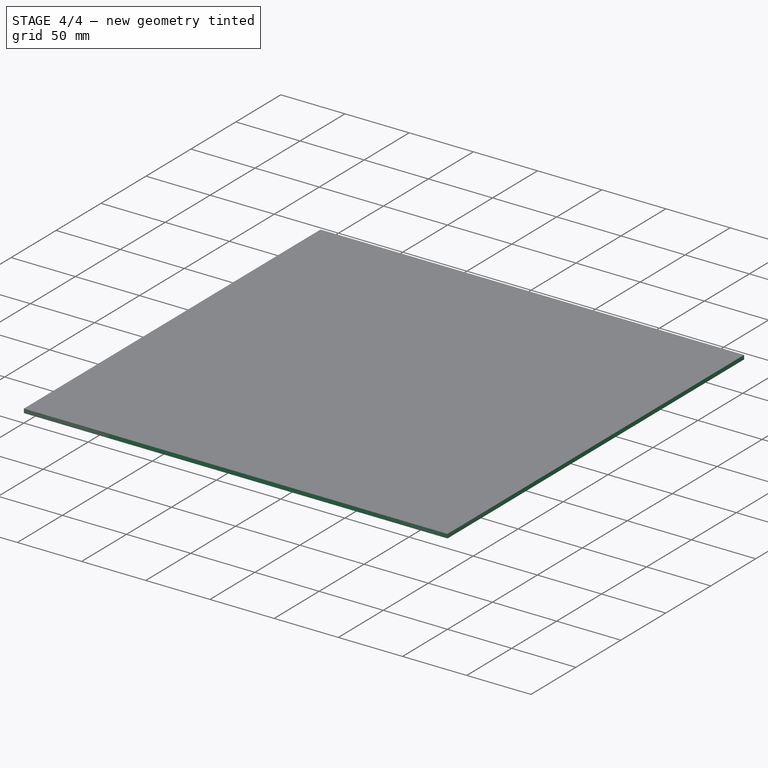
[diagram: stage 4 of 4 — iso view after this stage's code; geometry added in this stage tinted green]
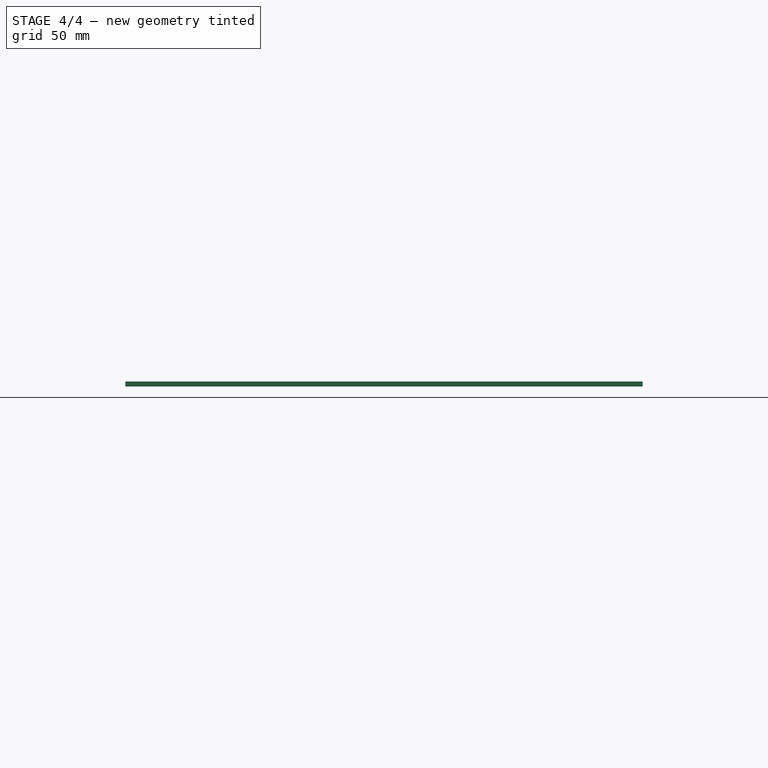
[diagram: stage 4 of 4 — front view after this stage's code; geometry added in this stage tinted green]
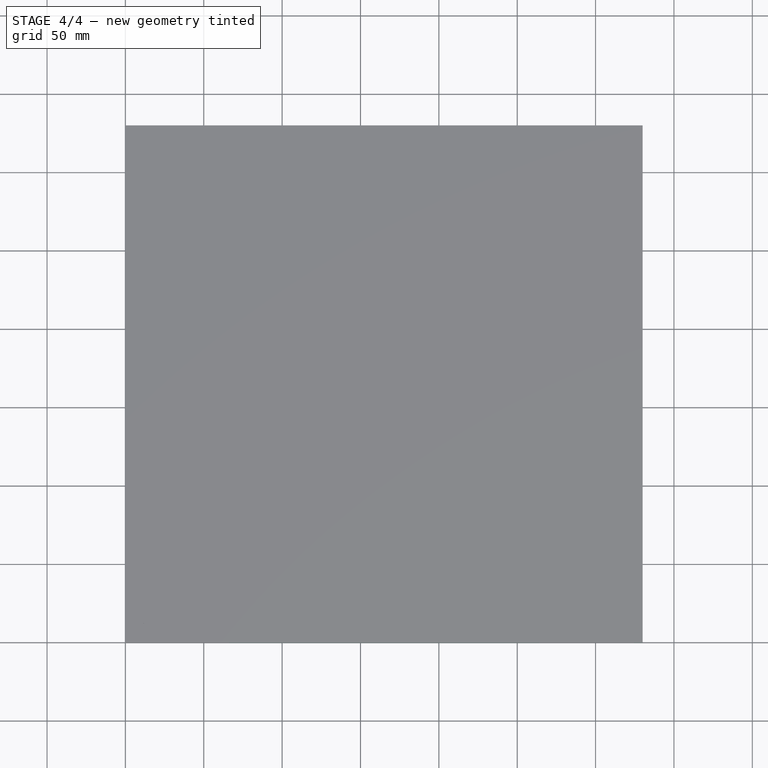
[diagram: stage 4 of 4 — top view after this stage's code; geometry added in this stage tinted green]
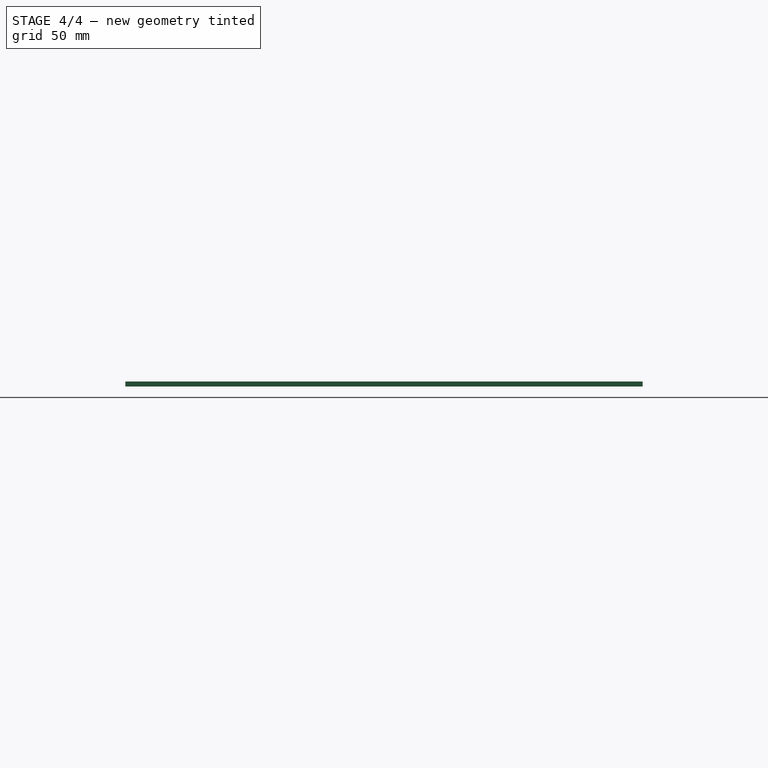
[diagram: stage 4 of 4 — right view after this stage's code; geometry added in this stage tinted green]
FEATURE [Sketcher::SketchObject] Sketch
  sketch-geometry (4):
    g0: LineSegment StartX=0 StartY=0 StartZ=0 EndX=330 EndY=0 EndZ=0
    g1: LineSegment StartX=330 StartY=0 StartZ=0 EndX=330 EndY=330 EndZ=0
    g2: LineSegment StartX=330 StartY=330 StartZ=0 EndX=0 EndY=330 EndZ=0
    g3: LineSegment StartX=0 StartY=330 StartZ=0 EndX=0 EndY=0 EndZ=0
  constraints (11):
    c: Coincident(g0,g1)
    c: Coincident(g1,g2)
    c: Coincident(g2,g3)
    c: Coincident(g3,g0)
    c: Horizontal(g0)
    c: Horizontal(g2)
    c: Vertical(g1)
    c: Vertical(g3)
    c: Coincident(g0,g-1)
    c: Equal(g2,g1)
    c: DistanceX(g2) = -330
FEATURE [PartDesign::Pad] Pad
  Length = 3.175
  Length2 = 100
  Type = 0
FEATURE [Sketcher::SketchObject] Sketch001
  ExternalGeometry = -> [Pad]
  Placement = pos=(0,0,3.175) rot=(0,0,1;0rad)
  sketch-geometry (12):
    g0: LineSegment StartX=66 StartY=0 StartZ=0 EndX=264 EndY=0 EndZ=0
    g1: LineSegment StartX=264 StartY=0 StartZ=0 EndX=250 EndY=14 EndZ=0
    g2: LineSegment StartX=250 StartY=14 StartZ=0 EndX=80 EndY=14 EndZ=0
    g3: LineSegment StartX=80 StartY=14 StartZ=0 EndX=66 EndY=0 EndZ=0
    g4: LineSegment StartX=330 StartY=66 StartZ=0 EndX=316 EndY=80 EndZ=0
    g5: LineSegment StartX=316 StartY=80 StartZ=0 EndX=316 EndY=250 EndZ=0
    g6: LineSegment StartX=316 StartY=250 StartZ=0 EndX=330 EndY=264 EndZ=0
    g7: LineSegment StartX=330 StartY=264 StartZ=0 EndX=330 EndY=66 EndZ=0
    g8: LineSegment StartX=66 StartY=330 StartZ=0 EndX=264 EndY=330 EndZ=0
    g9: LineSegment StartX=264 StartY=330 StartZ=0 EndX=250 EndY=316 EndZ=0
    g10: LineSegment StartX=250 StartY=316 StartZ=0 EndX=80 EndY=316 EndZ=0
    g11: LineSegment StartX=80 StartY=316 StartZ=0 EndX=66 EndY=330 EndZ=0
  constraints (36):
    c: Coincident(g0,g1)
    c: Coincident(g1,g2)
    c: Coincident(g2,g3)
    c: Coincident(g3,g0)
    c: Horizontal(g0)
    c: Horizontal(g2)
    c: PointOnObject(g0,g-5)
    c: Coincident(g4,g5)
    c: Coincident(g5,g6)
    c: Coincident(g6,g7)
    c: Coincident(g7,g4)
    c: Vertical(g5)
    c: Vertical(g7)
    c: PointOnObject(g4,g-4)
    c: Coincident(g8,g9)
    c: Coincident(g9,g10)
    c: Coincident(g10,g11)
    c: Coincident(g11,g8)
    c: Horizontal(g8)
    c: Horizontal(g10)
    c: PointOnObject(g8,g-3)
    c: Angle(g-5,g3) = 0.785398
    c: Angle(g1,g-5) = 0.785398
    c: Parallel(g4,g1)
    c: Parallel(g9,g3)
    c: Parallel(g6,g9)
    c: Parallel(g11,g4)
    c: DistanceX(g4,g4) = 14
    c: DistanceY(g9,g8) = 14
    c: DistanceY(g1,g0) = -14
    c: DistanceX(g8,g-4) = 66
    c: DistanceX(g8,g-3) = -66
    c: DistanceY(g6,g-4) = 66
    c: DistanceY(g4,g-5) = -66
    c: DistanceX(g0,g-5) = 66
    c: DistanceX(g-1,g0) = 66
FEATURE [PartDesign::Pocket] Pocket
  Length = 5
  Type = 0
FEATURE [Sketcher::SketchObject] Sketch002
  Placement = pos=(0,0,3.175) rot=(0,0,1;0rad)
  sketch-geometry (5):
    g0: Circle CenterX=140 CenterY=99.5 CenterZ=0 NormalX=0 NormalY=0 NormalZ=1 Radius=1.5
    g1: Circle CenterX=144.5 CenterY=138.5 CenterZ=0 NormalX=0 NormalY=0 NormalZ=1 Radius=1.5
    g2: Circle CenterX=150.5 CenterY=164.5 CenterZ=0 NormalX=0 NormalY=0 NormalZ=1 Radius=1.5
    g3: Circle CenterX=144.5 CenterY=190.5 CenterZ=0 NormalX=0 NormalY=0 NormalZ=1 Radius=1.5
    g4: LineSegment [constr] StartX=144.5 StartY=190.5 StartZ=0 EndX=144.5 EndY=138.5 EndZ=0
  constraints (14):
    c: DistanceX(g0) = 140
    c: DistanceY(g0) = 99.5
    c: DistanceX(g1) = 144.5
    c: DistanceY(g1) = 138.5
    c: DistanceX(g2) = 150.5
    c: DistanceY(g2) = 164.5
    c: Coincident(g4,g3)
    c: Coincident(g4,g1)
    c: Vertical(g4)
    c: DistanceY(g-1,g3) = 190.5
    c: Equal(g3,g2)
    c: Equal(g2,g1)
    c: Equal(g1,g0)
    c: Radius(g3) = 1.5
FEATURE [PartDesign::Pocket] Pocket001
  Length = 5
  Type = 0
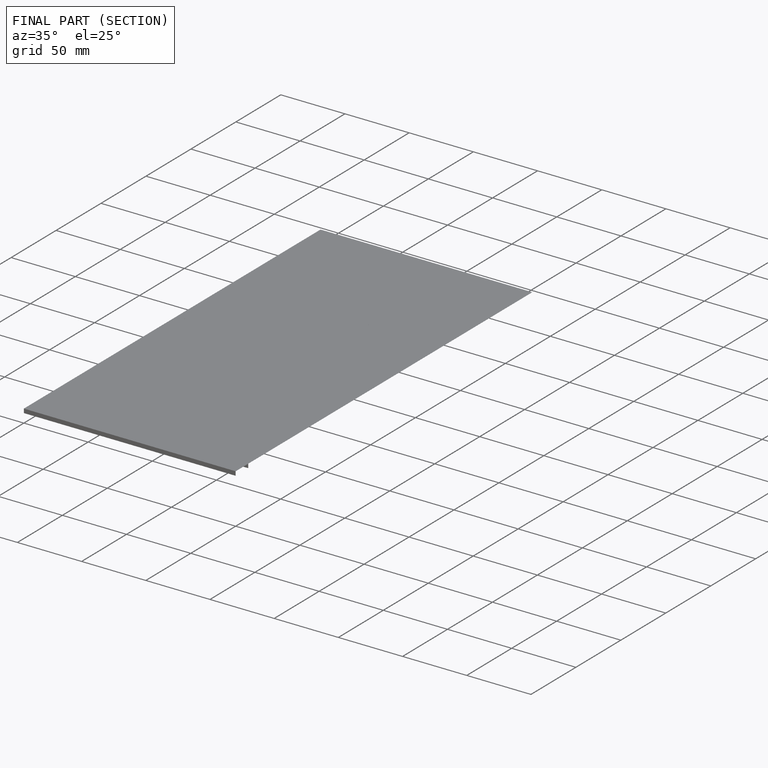
[diagram: finished part — half-section view (interior)]
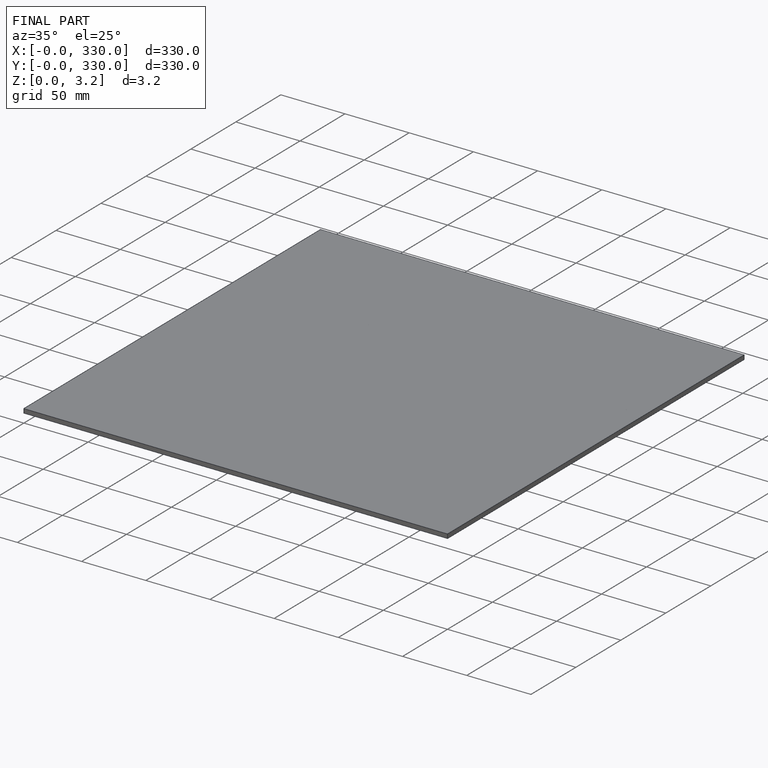
[diagram: finished part — iso view with bounding-box wireframe]
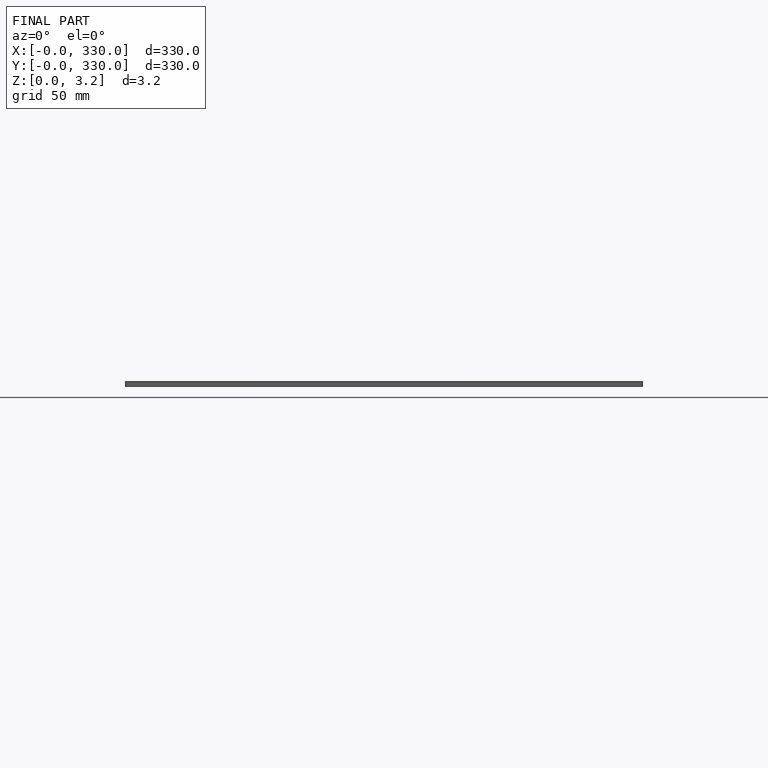
[diagram: finished part — front view with bounding-box wireframe]
